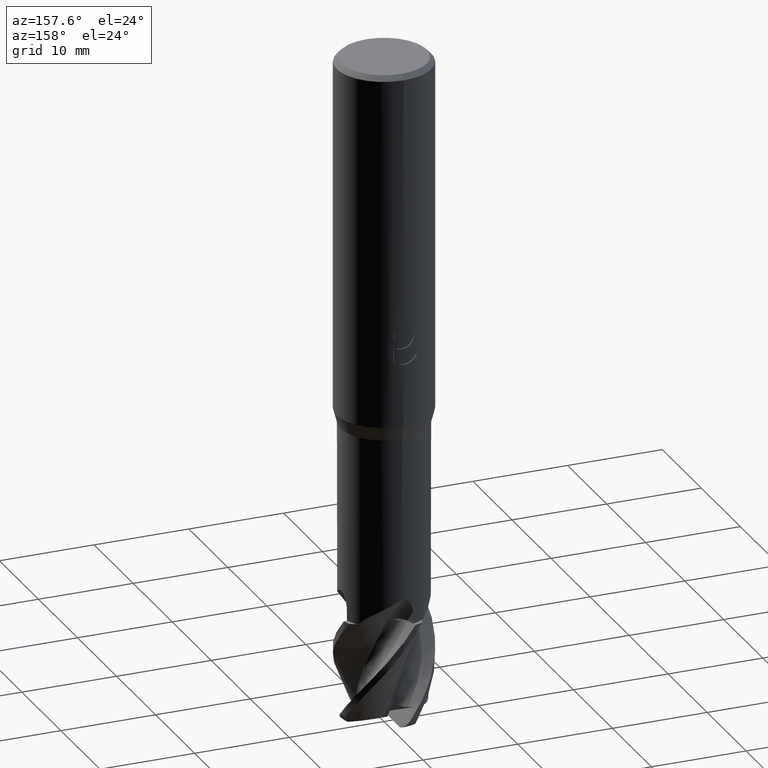
[diagram: clean part render]
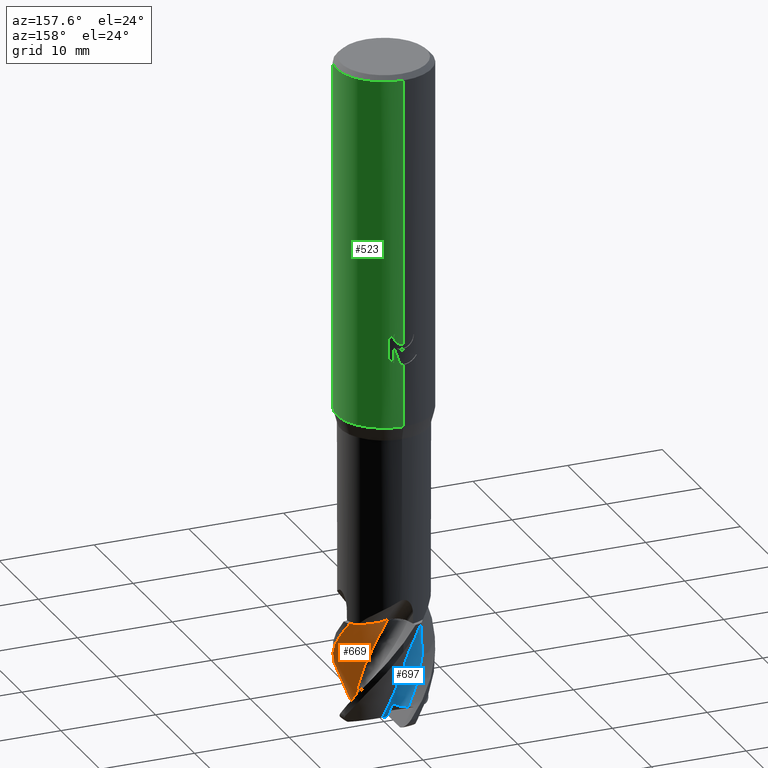
[diagram: same view with three faces highlighted in distinct colors, each labeled with its STEP entity id]
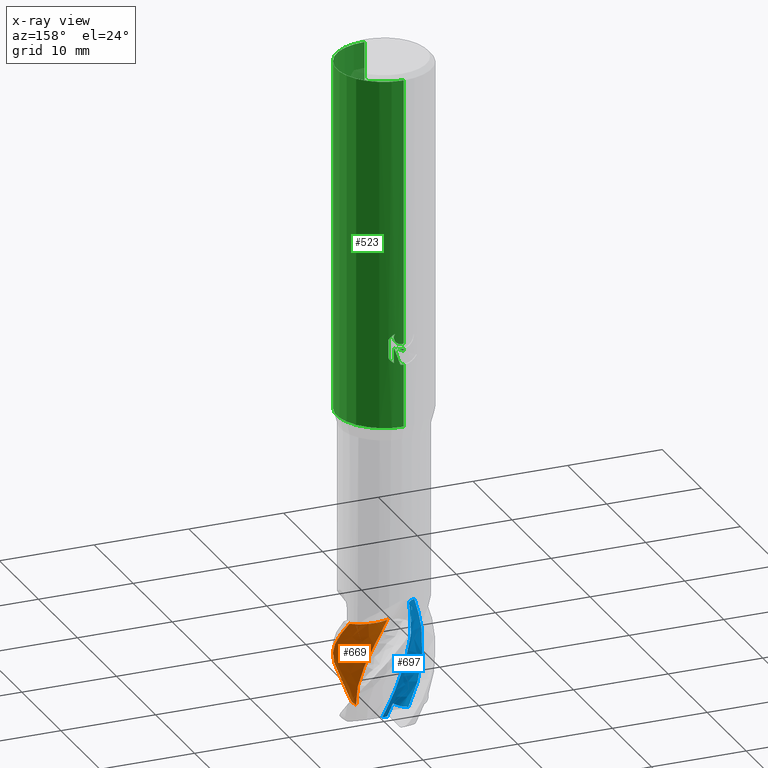
[diagram: x-ray of the same camera — body ghosted, the three highlighted faces saturated]
A machine part, auxiliary view with three faces highlighted in distinct colors.
The next image is the same camera in x-ray (body ghosted, the three faces saturated) — at least one of them is partly hidden behind the body in this view.
Their STEP definitions:

[orange] entity #669 — the highlighted face is a freeform B-spline surface patch.
#597=VERTEX_POINT('',#1587);
#615=EDGE_CURVE('',#741,#845,#1607,.T.);
#669=ADVANCED_FACE('',(#1662),#1663,.T.);
#695=EDGE_CURVE('',#725,#1021,#1691,.T.);
#725=VERTEX_POINT('',#1725);
#741=VERTEX_POINT('',#1743);
#759=EDGE_CURVE('',#1021,#741,#1761,.T.);
#791=EDGE_CURVE('',#845,#957,#1797,.T.);
#845=VERTEX_POINT('',#1858);
#893=EDGE_CURVE('',#1011,#725,#1910,.T.);
#945=EDGE_CURVE('',#1011,#597,#1966,.T.);
#957=VERTEX_POINT('',#1981);
#1011=VERTEX_POINT('',#2042);
#1021=VERTEX_POINT('',#2053);
#1265=EDGE_CURVE('',#957,#597,#2311,.T.);
#1587=CARTESIAN_POINT('',(0.737076171154196,2.63797045360997,-59.0));
#1607=B_SPLINE_CURVE_WITH_KNOTS('',3,(#3138,#3139,#3140,#3141,#3142,#3143,#3144,#3145),.UNSPECIFIED.,.F.,.F.,(4,2,2,4),(0.0,1.55396349120969,2.99561924604942,4.43724220191925),.UNSPECIFIED.);
#1662=FACE_OUTER_BOUND('',#3424,.T.);
#1663=B_SPLINE_SURFACE_WITH_KNOTS('',3,3,((#3425,#3426,#3427,#3428,#3429,#3430,#3431,#3432,#3433,#3434,#3435,#3436,#3437,#3438,#3439,#3440,#3441,#3442,#3443,#3444,#3445,#3446,#3447,#3448,#3449,#3450,#3451,#3452,#3453,#3454,#3455,#3456,#3457,#3458,#3459,#3460,#3461,#3462,#3463,#3464),(#3465,#3466,#3467,#3468,#3469,#3470,#3471,#3472,#3473,#3474,#3475,#3476,#3477,#3478,#3479,#3480,#3481,#3482,#3483,#3484,#3485,#3486,#3487,#3488,#3489,#3490,#3491,#3492,#3493,#3494,#3495,#3496,#3497,#3498,#3499,#3500,#3501,#3502,#3503,#3504),(#3505,#3506,#3507,#3508,#3509,#3510,#3511,#3512,#3513,#3514,#3515,#3516,#3517,#3518,#3519,#3520,#3521,#3522,#3523,#3524,#3525,#3526,#3527,#3528,#3529,#3530,#3531,#3532,#3533,#3534,#3535,#3536,#3537,#3538,#3539,#3540,#3541,#3542,#3543,#3544),(#3545,#3546,#3547,#3548,#3549,#3550,#3551,#3552,#3553,#3554,#3555,#3556,#3557,#3558,#3559,#3560,#3561,#3562,#3563,#3564,#3565,#3566,#3567,#3568,#3569,#3570,#3571,#3572,#3573,#3574,#3575,#3576,#3577,#3578,#3579,#3580,#3581,#3582,#3583,#3584),(#3585,#3586,#3587,#3588,#3589,#3590,#3591,#3592,#3593,#3594,#3595,#3596,#3597,#3598,#3599,#3600,#3601,#3602,#3603,#3604,#3605,#3606,#3607,#3608,#3609,#3610,#3611,#3612,#3613,#3614,#3615,#3616,#3617,#3618,#3619,#3620,#3621,#3622,#3623,#3624),(#3625,#3626,#3627,#3628,#3629,#3630,#3631,#3632,#3633,#3634,#3635,#3636,#3637,#3638,#3639,#3640,#3641,#3642,#3643,#3644,#3645,#3646,#3647,#3648,#3649,#3650,#3651,#3652,#3653,#3654,#3655,#3656,#3657,#3658,#3659,#3660,#3661,#3662,#3663,#3664)),.UNSPECIFIED.,.F.,.F.,.F.,(4,1,1,4),(4,1,2,2,1,2,1,1,2,1,1,2,1,1,1,2,1,1,2,1,1,2,1,1,1,2,1,1,4),(-1.11221997675852,-0.695137485474076,-0.27805499418963,0.0),(0.0,0.486072077387521,0.972144154775041,1.94428830955008,2.91643246432512,3.88857661910017,4.86072077387521,6.31893700603777,7.77715323820033,9.23536947036289,10.6935857025255,11.6657298573005,12.6378740120755,13.6100181668506,14.5821623216256,15.5543064764007,16.5264506311757,17.9846668633383,19.4428830955008,20.9010993276634,22.359315559826,23.331459714601,24.303603869376,25.2757480241511,26.2478921789261,27.2200363337012,28.1921804884762,29.6503967206388,31.1086129528013),.UNSPECIFIED.);
#1691=B_SPLINE_CURVE_WITH_KNOTS('',3,(#3887,#3888,#3889,#3890,#3891,#3892,#3893,#3894,#3895,#3896,#3897,#3898,#3899,#3900,#3901,#3902,#3903,#3904,#3905,#3906),.UNSPECIFIED.,.F.,.F.,(4,2,2,2,2,2,2,2,2,4),(0.0,0.769420759104394,1.74032963592877,2.42596052196037,2.88260017029396,3.18028061805128,3.44655268304474,3.7623935095189,3.92064508495623,4.05638694033664),.UNSPECIFIED.);
#1725=CARTESIAN_POINT('',(1.47630549678815,-4.43153209530625,-69.7414850886461));
#1743=CARTESIAN_POINT('',(4.52905857490984,2.11816629069472,-59.0));
#1761=B_SPLINE_CURVE_WITH_KNOTS('',3,(#4642,#4643,#4644,#4645,#4646,#4647,#4648,#4649,#4650,#4651,#4652,#4653,#4654,#4655,#4656,#4657,#4658,#4659),.UNSPECIFIED.,.F.,.F.,(4,2,2,2,2,2,2,2,4),(0.0,0.557851609721486,1.72374534259274,3.8285787963716,5.38078370266733,6.46802397177926,7.98955394303208,8.78270153063445,9.55598091135206),.UNSPECIFIED.);
#1797=B_SPLINE_CURVE_WITH_KNOTS('',3,(#4735,#4736,#4737,#4738,#4739,#4740,#4741,#4742),.UNSPECIFIED.,.F.,.F.,(4,2,2,4),(0.0,1.55396349120969,2.99561924604942,4.43724220191925),.UNSPECIFIED.);
#1858=CARTESIAN_POINT('',(4.50606394713274,2.13509259524409,-59.0));
#1910=B_SPLINE_CURVE_WITH_KNOTS('',3,(#5131,#5132,#5133,#5134,#5135,#5136,#5137,#5138),.UNSPECIFIED.,.F.,.F.,(4,2,2,4),(0.0,1.3569187390882,2.46078725031736,3.66498565022001),.UNSPECIFIED.);
#1966=B_SPLINE_CURVE_WITH_KNOTS('',3,(#5561,#5562,#5563,#5564,#5565,#5566,#5567,#5568,#5569,#5570,#5571,#5572,#5573,#5574,#5575,#5576,#5577,#5578,#5579,#5580,#5581,#5582,#5583,#5584,#5585,#5586,#5587,#5588,#5589,#5590,#5591,#5592,#5593,#5594,#5595,#5596,#5597,#5598,#5599,#5600),.UNSPECIFIED.,.F.,.F.,(4,1,2,2,1,2,1,1,2,1,1,2,1,1,1,2,1,1,2,1,1,2,1,1,1,2,1,1,4),(0.0,0.486072077387521,0.972144154775041,1.94428830955008,2.91643246432512,3.88857661910017,4.86072077387521,6.31893700603777,7.77715323820033,9.23536947036289,10.6935857025255,11.6657298573005,12.6378740120755,13.6100181668506,14.5821623216256,15.5543064764007,16.5264506311757,17.9846668633383,19.4428830955008,20.9010993276634,22.359315559826,23.331459714601,24.303603869376,25.2757480241511,26.2478921789261,27.2200363337012,28.1921804884762,29.6503967206388,31.1086129528013),.UNSPECIFIED.);
#1981=CARTESIAN_POINT('',(3.68322327025453,2.5975549629585,-59.0));
#2042=CARTESIAN_POINT('',(2.46012442526015,-1.20096884867504,-69.4218229412569));
#2053=CARTESIAN_POINT('',(1.60307264857335,-4.73604878389106,-69.0));
#2311=B_SPLINE_CURVE_WITH_KNOTS('',3,(#7974,#7975,#7976,#7977,#7978,#7979,#7980,#7981),.UNSPECIFIED.,.F.,.F.,(4,2,2,4),(0.0,1.55396349120969,2.99561924604942,4.43724220191925),.UNSPECIFIED.);
#3138=CARTESIAN_POINT('',(4.86108505578908,1.84280296150224,-59.0));
#3139=CARTESIAN_POINT('',(4.48088859473281,2.19460126088149,-59.0));
#3140=CARTESIAN_POINT('',(4.03561449795018,2.46877599508461,-59.0));
#3141=CARTESIAN_POINT('',(3.10010394672517,2.81791849535592,-59.0));
#3142=CARTESIAN_POINT('',(2.62314150371278,2.90297791340027,-59.0));
#3143=CARTESIAN_POINT('',(1.66205792340642,2.89890090303645,-59.0));
#3144=CARTESIAN_POINT('',(1.18584488379222,2.8098020001104,-59.0));
#3145=CARTESIAN_POINT('',(0.737076171154183,2.63797045360997,-59.0));
#3424=EDGE_LOOP('',(#9196,#9197,#9198,#9199,#9200,#9201,#9202));
#3425=CARTESIAN_POINT('',(-5.19564065181808,-0.212880755921786,-80.0));
#3426=CARTESIAN_POINT('',(-5.19609680644737,-0.189890592192867,-79.8385460500554));
#3427=CARTESIAN_POINT('',(-5.19494594156864,-0.238256232680007,-79.5156478639532));
#3428=CARTESIAN_POINT('',(-5.1794994751181,-0.477770324812059,-79.1927553830417));
#3429=CARTESIAN_POINT('',(-5.11655024582423,-0.977129289067499,-78.7083695761286));
#3430=CARTESIAN_POINT('',(-5.04664529308524,-1.27880502848625,-78.3854371481598));
#3431=CARTESIAN_POINT('',(-4.87529433628579,-1.82631806203963,-77.7395959489237));
#3432=CARTESIAN_POINT('',(-4.66167584927622,-2.35150973638678,-77.0937558532972));
#3433=CARTESIAN_POINT('',(-4.36543498500474,-2.83708377016812,-76.4479260934714));
#3434=CARTESIAN_POINT('',(-4.0247115485475,-3.30295156237913,-75.8020970597784));
#3435=CARTESIAN_POINT('',(-3.56152633583642,-3.83503759650413,-74.9948003153958));
#3436=CARTESIAN_POINT('',(-2.69261648071972,-4.50412857233201,-73.7031380078652));
#3437=CARTESIAN_POINT('',(-1.91773161953482,-4.85177429207895,-72.7344089509235));
#3438=CARTESIAN_POINT('',(-1.07353354912501,-5.10543284513102,-71.7656529515241));
#3439=CARTESIAN_POINT('',(-0.235901144276198,-5.24239209051761,-70.7968772462885));
#3440=CARTESIAN_POINT('',(0.862905557389257,-5.16255081476299,-69.5052146303626));
#3441=CARTESIAN_POINT('',(1.550754232743,-4.97033935246785,-68.6979356250092));
#3442=CARTESIAN_POINT('',(2.09965896288456,-4.76455615216402,-68.0521030676683));
#3443=CARTESIAN_POINT('',(2.61573124806714,-4.51863090044092,-67.4062605188767));
#3444=CARTESIAN_POINT('',(3.2987220181123,-4.04622449681783,-66.4375019565823));
#3445=CARTESIAN_POINT('',(3.89894648208299,-3.47237947318845,-65.4687604084187));
#3446=CARTESIAN_POINT('',(4.24378539251623,-3.01651622483346,-64.8229363029868));
#3447=CARTESIAN_POINT('',(4.55598476721765,-2.52043660330475,-64.1771022814516));
#3448=CARTESIAN_POINT('',(4.88294973507448,-1.8853420428436,-63.3697972656502));
#3449=CARTESIAN_POINT('',(5.18234756544545,-0.825004374119845,-62.0781220454436));
#3450=CARTESIAN_POINT('',(5.21688437361934,0.0218649910455856,-61.1093919692102));
#3451=CARTESIAN_POINT('',(5.13919098800625,0.897635232842162,-60.1406418772599));
#3452=CARTESIAN_POINT('',(4.95592516539474,1.72546881757682,-59.1718713351777));
#3453=CARTESIAN_POINT('',(4.47386718166457,2.7168919548825,-57.8802105275996));
#3454=CARTESIAN_POINT('',(4.03993312460627,3.28451258873163,-57.0729294428162));
#3455=CARTESIAN_POINT('',(3.64520203244384,3.717805005705,-56.4270942584265));
#3456=CARTESIAN_POINT('',(3.22556959194476,4.10554340918623,-55.7812499649805));
#3457=CARTESIAN_POINT('',(2.53388421040326,4.56429474717018,-54.8124918292606));
#3458=CARTESIAN_POINT('',(1.77806546967121,4.90897652309737,-53.8437537138714));
#3459=CARTESIAN_POINT('',(1.22567832144115,5.0603602361706,-53.1979336062352));
#3460=CARTESIAN_POINT('',(0.647355947161724,5.16635501700152,-52.5521041292132));
#3461=CARTESIAN_POINT('',(-0.0655354658459752,5.23403155675051,-51.7448014375135));
#3462=CARTESIAN_POINT('',(-1.15850921637866,5.11761711156955,-50.4531215658583));
#3463=CARTESIAN_POINT('',(-1.9484194677618,4.83888143208641,-49.4843897510382));
#3464=CARTESIAN_POINT('',(-2.33487250988358,4.64451046831458,-49.0000173704426));
#3465=CARTESIAN_POINT('',(-4.93170831188276,-0.698890583402509,-80.0));
#3466=CARTESIAN_POINT('',(-4.93296847543732,-0.676337045393666,-79.8385492808142));
#3467=CARTESIAN_POINT('',(-4.92532464257459,-0.7213032507056,-79.5157175980826));
#3468=CARTESIAN_POINT('',(-4.88748091086648,-0.947771084959736,-79.1929304507209));
#3469=CARTESIAN_POINT('',(-4.78060608891639,-1.41786187778548,-78.7085163815257));
#3470=CARTESIAN_POINT('',(-4.68547424873049,-1.69874547279753,-78.385520632518));
#3471=CARTESIAN_POINT('',(-4.47017759876977,-2.20404067152182,-77.7396461017452));
#3472=CARTESIAN_POINT('',(-4.21667869531613,-2.68399383393154,-77.0937811916577));
#3473=CARTESIAN_POINT('',(-3.88826187553999,-3.11834997893118,-76.4479690505175));
#3474=CARTESIAN_POINT('',(-3.51939021606521,-3.52978769597305,-75.8021595595886));
#3475=CARTESIAN_POINT('',(-3.02748120905728,-3.9925241858023,-74.9948469529851));
#3476=CARTESIAN_POINT('',(-2.13597433532509,-4.5467823337157,-73.7032034601547));
#3477=CARTESIAN_POINT('',(-1.36475849397034,-4.80413877605626,-72.7345542228338));
#3478=CARTESIAN_POINT('',(-0.536385613686158,-4.96572021040143,-71.7657772281675));
#3479=CARTESIAN_POINT('',(0.274591663429422,-5.01638650100178,-70.7969069319378));
#3480=CARTESIAN_POINT('',(1.31352369492199,-4.8354108891199,-69.5052629467485));
#3481=CARTESIAN_POINT('',(1.95048571276998,-4.58687293795457,-68.6980336852478));
#3482=CARTESIAN_POINT('',(2.45391780257695,-4.33872541026354,-68.0522057054913));
#3483=CARTESIAN_POINT('',(2.92215148043527,-4.05534682986866,-67.4063300984853));
#3484=CARTESIAN_POINT('',(3.52762397103917,-3.54021003811791,-66.4375416215256));
#3485=CARTESIAN_POINT('',(4.0445784812727,-2.93636057314584,-65.4688340815212));
#3486=CARTESIAN_POINT('',(4.32971035792128,-2.46929743587002,-64.8230461814432));
#3487=CARTESIAN_POINT('',(4.58007659248734,-1.96703757130147,-64.1772111035424));
#3488=CARTESIAN_POINT('',(4.83113092071353,-1.33091063847815,-63.3698578782557));
#3489=CARTESIAN_POINT('',(5.0150349496714,-0.292385164105343,-62.0781536873317));
#3490=CARTESIAN_POINT('',(4.96726424062669,0.517574731565521,-61.1095007536288));
#3491=CARTESIAN_POINT('',(4.81013379322794,1.34457910427288,-60.1407523902769));
#3492=CARTESIAN_POINT('',(4.55668034432814,2.11570718374597,-59.1719065416386));
#3493=CARTESIAN_POINT('',(4.00287519421617,3.01395923366496,-57.8802706277171));
#3494=CARTESIAN_POINT('',(3.53551031484874,3.51339934557622,-57.0730316512028));
#3495=CARTESIAN_POINT('',(3.11831674124241,3.8887518279416,-56.427191601129));
#3496=CARTESIAN_POINT('',(2.68166619634805,4.21819876773783,-55.7813084668524));
#3497=CARTESIAN_POINT('',(1.97906193253426,4.5891536369805,-54.8125230687788));
#3498=CARTESIAN_POINT('',(1.22626718742433,4.84534654242393,-53.8438318088416));
#3499=CARTESIAN_POINT('',(0.685655706493041,4.93702148773614,-53.1980614596327));
#3500=CARTESIAN_POINT('',(0.124603811912336,4.9831434632769,-52.5522454912863));
#3501=CARTESIAN_POINT('',(-0.560973578960067,4.9798073975185,-51.7448988276622));
#3502=CARTESIAN_POINT('',(-1.59086905863772,4.76452979201103,-50.4531549835585));
#3503=CARTESIAN_POINT('',(-2.31666869617625,4.4237100180053,-49.4844645405855));
#3504=CARTESIAN_POINT('',(-2.66635792536323,4.2018105162807,-49.0000826767076));
#3505=CARTESIAN_POINT('',(-4.19837080486198,-1.5589861157215,-80.0));
#3506=CARTESIAN_POINT('',(-4.20105383716326,-1.53764574407337,-79.8385550167997));
#3507=CARTESIAN_POINT('',(-4.18186576469139,-1.57306794543593,-79.5158414054903));
#3508=CARTESIAN_POINT('',(-4.10475904478856,-1.76397474277888,-79.1932412694782));
#3509=CARTESIAN_POINT('',(-3.92243924645926,-2.15696147114995,-78.7087770228938));
#3510=CARTESIAN_POINT('',(-3.78566373879337,-2.38559931214026,-78.3856688529021));
#3511=CARTESIAN_POINT('',(-3.50036052907971,-2.78788961129858,-77.7397351435705));
#3512=CARTESIAN_POINT('',(-3.18626131439027,-3.16051805433335,-77.0938261803619));
#3513=CARTESIAN_POINT('',(-2.81517864199746,-3.47885346087619,-76.4480453129598));
#3514=CARTESIAN_POINT('',(-2.41305342147617,-3.7695518223451,-75.8022705274254));
#3515=CARTESIAN_POINT('',(-1.8930519372912,-4.08147456213262,-74.9949297517586));
#3516=CARTESIAN_POINT('',(-1.00494540990265,-4.39656900206773,-73.7033196731144));
#3517=CARTESIAN_POINT('',(-0.279264163101332,-4.47494797935668,-72.7348121373051));
#3518=CARTESIAN_POINT('',(0.478511947513936,-4.45912002463874,-71.7659978757641));
#3519=CARTESIAN_POINT('',(1.19968553788772,-4.34852404004832,-70.7969596340788));
#3520=CARTESIAN_POINT('',(2.07611382896893,-3.99066546938598,-69.5053487192551));
#3521=CARTESIAN_POINT('',(2.58750007949666,-3.65103354400932,-68.6982077902885));
#3522=CARTESIAN_POINT('',(2.98208843657267,-3.33741827315291,-68.0523879239319));
#3523=CARTESIAN_POINT('',(3.3388254354569,-2.99939230602066,-67.4064536403928));
#3524=CARTESIAN_POINT('',(3.77122536762488,-2.43161337794654,-66.437612048618));
#3525=CARTESIAN_POINT('',(4.10899104071132,-1.80300013662792,-65.4689648849151));
#3526=CARTESIAN_POINT('',(4.2700028130497,-1.33880344147602,-64.8232412458467));
#3527=CARTESIAN_POINT('',(4.39412149034948,-0.850346079635699,-64.1774043246076));
#3528=CARTESIAN_POINT('',(4.49295881590959,-0.244270374569969,-63.3699654729845));
#3529=CARTESIAN_POINT('',(4.45516570986354,0.701780719059451,-62.0782098346029));
#3530=CARTESIAN_POINT('',(4.25843968686998,1.40311989807068,-61.1096938666485));
#3531=CARTESIAN_POINT('',(3.96310933588526,2.09901155917816,-60.1409486224527));
#3532=CARTESIAN_POINT('',(3.59330889780899,2.72706508969267,-59.1719690541101));
#3533=CARTESIAN_POINT('',(2.93546593961562,3.40867135055172,-57.8803773215271));
#3534=CARTESIAN_POINT('',(2.43010251159363,3.75764375793014,-57.0732130986298));
#3535=CARTESIAN_POINT('',(1.99250867875978,4.00764448424262,-56.4273644408162));
#3536=CARTESIAN_POINT('',(1.5464924071977,4.21334020268405,-55.7814123275279));
#3537=CARTESIAN_POINT('',(0.85920020691392,4.40413011505187,-54.8125785446727));
#3538=CARTESIAN_POINT('',(0.149888674690247,4.48467247318793,-53.8439704537004));
#3539=CARTESIAN_POINT('',(-0.341916940631526,4.46194406603505,-53.1982884604322));
#3540=CARTESIAN_POINT('',(-0.843106909498922,4.39565938254457,-52.5524964611909));
#3541=CARTESIAN_POINT('',(-1.44402781711656,4.26189219411168,-51.7450717641034));
#3542=CARTESIAN_POINT('',(-2.30597495557008,3.87562812926319,-50.45321433018));
#3543=CARTESIAN_POINT('',(-2.87732216568237,3.43779691320145,-49.4845972964987));
#3544=CARTESIAN_POINT('',(-3.14185719231738,3.17640881080151,-49.0001986228087));
#3545=CARTESIAN_POINT('',(-2.8397585664664,-2.21119471368533,-80.0));
#3546=CARTESIAN_POINT('',(-2.84352055390187,-2.19210190869983,-79.8385594219847));
#3547=CARTESIAN_POINT('',(-2.81541703317553,-2.20965308349819,-79.5159364890817));
#3548=CARTESIAN_POINT('',(-2.70966348129144,-2.3359989236349,-79.1934799770917));
#3549=CARTESIAN_POINT('',(-2.4770376940944,-2.59423648611926,-78.708977194347));
#3550=CARTESIAN_POINT('',(-2.31772806586789,-2.73668903873397,-78.3857826864644));
#3551=CARTESIAN_POINT('',(-2.0027420556718,-2.97559636787204,-77.7398035264436));
#3552=CARTESIAN_POINT('',(-1.67275991101612,-3.1846582544774,-77.0938607309772));
#3553=CARTESIAN_POINT('',(-1.31235409029267,-3.33851680729802,-76.448103884172));
#3554=CARTESIAN_POINT('',(-0.934928357752842,-3.46407186798735,-75.8023557483257));
#3555=CARTESIAN_POINT('',(-0.462166470854862,-3.57698024518378,-74.9949933419267));
#3556=CARTESIAN_POINT('',(0.292577274863419,-3.60238035979291,-73.7034089213793));
#3557=CARTESIAN_POINT('',(0.866053737335916,-3.48719442739761,-72.7350102157363));
#3558=CARTESIAN_POINT('',(1.44192243358232,-3.2932539409188,-71.7661673311025));
#3559=CARTESIAN_POINT('',(1.96650020433931,-3.03460540195527,-70.7970001120543));
#3560=CARTESIAN_POINT('',(2.54927438987829,-2.54893245116922,-69.5054145969239));
#3561=CARTESIAN_POINT('',(2.85837129972916,-2.1661077925793,-68.6983414990185));
#3562=CARTESIAN_POINT('',(3.08491166469078,-1.83149707719526,-68.0525278702213));
#3563=CARTESIAN_POINT('',(3.27621294260372,-1.48709861180048,-67.4065485165623));
#3564=CARTESIAN_POINT('',(3.46920192366406,-0.948660385772855,-66.4376661335539));
#3565=CARTESIAN_POINT('',(3.57516353735961,-0.386675082883842,-65.4690653386007));
#3566=CARTESIAN_POINT('',(3.58642628821454,0.00696661322277231,-64.8233910639348));
#3567=CARTESIAN_POINT('',(3.56411134036728,0.410388875674478,-64.1775527082198));
#3568=CARTESIAN_POINT('',(3.49363828224138,0.897591845982407,-63.3700481112057));
#3569=CARTESIAN_POINT('',(3.23556778506595,1.61113927408714,-62.078252974115));
#3570=CARTESIAN_POINT('',(2.91595760057752,2.09959476475676,-61.1098421862925));
#3571=CARTESIAN_POINT('',(2.52300575648998,2.56099687825958,-60.1410993183709));
#3572=CARTESIAN_POINT('',(2.08868457872344,2.95178674824607,-59.1720170687802));
#3573=CARTESIAN_POINT('',(1.42107514184159,3.31309933600684,-57.8804592712996));
#3574=CARTESIAN_POINT('',(0.950689195481168,3.45812701671822,-57.0733524504228));
#3575=CARTESIAN_POINT('',(0.555954592321141,3.54430664459526,-56.4274971801251));
#3576=CARTESIAN_POINT('',(0.165383486468474,3.59409406232498,-55.7814920890972));
#3577=CARTESIAN_POINT('',(-0.405902457979324,3.57354268770566,-54.8126211421745));
#3578=CARTESIAN_POINT('',(-0.967307261841864,3.46346722525496,-53.84407694284));
#3579=CARTESIAN_POINT('',(-1.33780932553633,3.32765479506382,-53.1984627821601));
#3580=CARTESIAN_POINT('',(-1.70529761036294,3.15669346497381,-52.5526892190684));
#3581=CARTESIAN_POINT('',(-2.13255473935526,2.90967477873681,-51.7452045522617));
#3582=CARTESIAN_POINT('',(-2.69739681225187,2.40572560312206,-50.453259902517));
#3583=CARTESIAN_POINT('',(-3.0280579911498,1.93309027319845,-49.4846992517872));
#3584=CARTESIAN_POINT('',(-3.16745793668112,1.66957508953798,-49.0002876689509));
#3585=CARTESIAN_POINT('',(-1.91358979082674,-2.30394249606492,-80.0));
#3586=CARTESIAN_POINT('',(-1.91750521278804,-2.28638186042541,-79.83856009917));
#3587=CARTESIAN_POINT('',(-1.88798638159153,-2.29167952039032,-79.515951107168));
#3588=CARTESIAN_POINT('',(-1.77918767414919,-2.37450782463202,-79.1935166758065));
#3589=CARTESIAN_POINT('',(-1.54571350848674,-2.54391354230384,-78.7090079684808));
#3590=CARTESIAN_POINT('',(-1.39145966584314,-2.63157878059027,-78.3858001864729));
#3591=CARTESIAN_POINT('',(-1.09362721699823,-2.76936858666441,-77.739814040225));
#3592=CARTESIAN_POINT('',(-0.788850280851104,-2.8801109739377,-77.0938660428966));
#3593=CARTESIAN_POINT('',(-0.469263459353222,-2.94071181357055,-76.4481128879188));
#3594=CARTESIAN_POINT('',(-0.14093937138292,-2.97557367739998,-75.802368851048));
#3595=CARTESIAN_POINT('',(0.262503503769327,-2.98286561196153,-74.9950031166913));
#3596=CARTESIAN_POINT('',(0.878833534159762,-2.86812247555397,-73.7034226404871));
#3597=CARTESIAN_POINT('',(1.32318900645386,-2.67257763881829,-72.7350406683033));
#3598=CARTESIAN_POINT('',(1.75594203209959,-2.41350265397395,-71.7661933828455));
#3599=CARTESIAN_POINT('',(2.13520224836651,-2.11026589366835,-70.7970063294138));
#3600=CARTESIAN_POINT('',(2.52056086962783,-1.6121851827543,-69.5054247225737));
#3601=CARTESIAN_POINT('',(2.70310532168639,-1.24685848593505,-68.6983620567432));
#3602=CARTESIAN_POINT('',(2.82764791404542,-0.935427615795983,-68.0525493839714));
#3603=CARTESIAN_POINT('',(2.92154611314878,-0.622150113678444,-67.4065631003436));
#3604=CARTESIAN_POINT('',(2.98169459805862,-0.151140487818661,-66.4376744482556));
#3605=CARTESIAN_POINT('',(2.96708101892715,0.323366154461958,-65.4690807858059));
#3606=CARTESIAN_POINT('',(2.90624115888482,0.644519998872003,-64.8234140959891));
#3607=CARTESIAN_POINT('',(2.81679652101275,0.967744232497681,-64.177575521425));
#3608=CARTESIAN_POINT('',(2.67303236975402,1.35028588883701,-63.3700608089174));
#3609=CARTESIAN_POINT('',(2.33599356822248,1.8824635371796,-62.0782595843351));
#3610=CARTESIAN_POINT('',(1.98983770146433,2.22144127569393,-61.1098650244084));
#3611=CARTESIAN_POINT('',(1.58955681408296,2.52613732015573,-60.1411224506499));
#3612=CARTESIAN_POINT('',(1.16771076125532,2.76557740998251,-59.1720244476432));
#3613=CARTESIAN_POINT('',(0.561846317659827,2.93885285184229,-57.880471873947));
#3614=CARTESIAN_POINT('',(0.154697025378071,2.97282027574675,-57.0733738767384));
#3615=CARTESIAN_POINT('',(-0.180669617176069,2.97289675389191,-56.4275175848429));
#3616=CARTESIAN_POINT('',(-0.5062301058264,2.9438247835253,-55.7815043578985));
#3617=CARTESIAN_POINT('',(-0.965672454577295,2.82497334123062,-54.8126276898381));
#3618=CARTESIAN_POINT('',(-1.4010722678729,2.63534555315499,-53.844093305586));
#3619=CARTESIAN_POINT('',(-1.67733618427067,2.45940203155623,-53.1984895896748));
#3620=CARTESIAN_POINT('',(-1.94515682427675,2.25580101565537,-52.5527188460415));
#3621=CARTESIAN_POINT('',(-2.24773708848365,1.9795748670022,-51.7452249734199));
#3622=CARTESIAN_POINT('',(-2.61529178862962,1.46982595334159,-50.4532668929524));
#3623=CARTESIAN_POINT('',(-2.79887076750237,1.02764133133722,-49.4847149364726));
#3624=CARTESIAN_POINT('',(-2.86516216358674,0.789229692839175,-49.0003013588229));
#3625=CARTESIAN_POINT('',(-1.54516668842389,-2.28963209410875,-80.0));
#3626=CARTESIAN_POINT('',(-1.5490584371908,-2.27268094517319,-79.8385600301461));
#3627=CARTESIAN_POINT('',(-1.51965509274174,-2.27309394219306,-79.515949616728));
#3628=CARTESIAN_POINT('',(-1.41204379019709,-2.33868315369798,-79.1935129339765));
#3629=CARTESIAN_POINT('',(-1.18309924636077,-2.47319271070188,-78.7090048308599));
#3630=CARTESIAN_POINT('',(-1.03382778312219,-2.53964101791193,-78.3857984022136));
#3631=CARTESIAN_POINT('',(-0.748259809181286,-2.63870024554417,-77.7398129682122));
#3632=CARTESIAN_POINT('',(-0.458752945883149,-2.71225047704591,-77.0938655010917));
#3633=CARTESIAN_POINT('',(-0.16028458677305,-2.73849961564627,-76.4481119703424));
#3634=CARTESIAN_POINT('',(0.143812039663419,-2.74046925060829,-75.80236751466));
#3635=CARTESIAN_POINT('',(0.514279091491341,-2.71012104195548,-74.9950021209446));
#3636=CARTESIAN_POINT('',(1.06863675757185,-2.54797460790162,-73.7034212423289));
#3637=CARTESIAN_POINT('',(1.45793796940524,-2.32797187041648,-72.7350375636501));
#3638=CARTESIAN_POINT('',(1.83097981120845,-2.05117773074071,-71.7661907263473));
#3639=CARTESIAN_POINT('',(2.15078967581162,-1.73840286420616,-70.797005696758));
#3640=CARTESIAN_POINT('',(2.45802080374165,-1.24626053517378,-69.5054236915643));
#3641=CARTESIAN_POINT('',(2.59187512586861,-0.894725682067717,-68.6983599599667));
#3642=CARTESIAN_POINT('',(2.67767166720755,-0.597971647822531,-68.0525471911617));
#3643=CARTESIAN_POINT('',(2.73506105081914,-0.302234871566009,-67.406561614678));
#3644=CARTESIAN_POINT('',(2.74678562228577,0.135050376844075,-66.4376736005309));
#3645=CARTESIAN_POINT('',(2.6896574373944,0.568638155077139,-65.4690792089242));
#3646=CARTESIAN_POINT('',(2.60449874800642,0.857407476747017,-64.8234117481386));
#3647=CARTESIAN_POINT('',(2.49310824093554,1.1454946057585,-64.1775731949152));
#3648=CARTESIAN_POINT('',(2.32632010589252,1.48296467732232,-63.3700595180889));
#3649=CARTESIAN_POINT('',(1.96822893441667,1.93966639797006,-62.0782589178582));
#3650=CARTESIAN_POINT('',(1.61984097277316,2.21854930465705,-61.1098626808468));
#3651=CARTESIAN_POINT('',(1.22526256099432,2.46136664265185,-60.1411201070882));
#3652=CARTESIAN_POINT('',(0.816595182355797,2.64211338929809,-59.1720236959899));
#3653=CARTESIAN_POINT('',(0.245246716257974,2.74499955477094,-57.880470586169));
#3654=CARTESIAN_POINT('',(-0.131014953101323,2.73885823825794,-57.0733716908527));
#3655=CARTESIAN_POINT('',(-0.43837778773782,2.70840516108932,-56.4275155056609));
#3656=CARTESIAN_POINT('',(-0.734117307623627,2.65195430816274,-55.78150310439));
#3657=CARTESIAN_POINT('',(-1.1443014445425,2.50066072524466,-54.8126270226227));
#3658=CARTESIAN_POINT('',(-1.52591358865255,2.28672090918061,-53.8440916417096));
#3659=CARTESIAN_POINT('',(-1.76301014819684,2.10019189551437,-53.1984868513725));
#3660=CARTESIAN_POINT('',(-1.98994344246503,1.88924154883854,-52.5527158303098));
#3661=CARTESIAN_POINT('',(-2.24201283654812,1.60838151758956,-51.7452228878706));
#3662=CARTESIAN_POINT('',(-2.53185204049716,1.10715637164758,-50.4532661892162));
#3663=CARTESIAN_POINT('',(-2.65939584759486,0.684968843720071,-49.4847133325886));
#3664=CARTESIAN_POINT('',(-2.69838005547692,0.460407402839449,-49.0002999630109));
#3887=CARTESIAN_POINT('',(2.44290110150666,-2.14279799916376,-69.6608877136353));
#3888=CARTESIAN_POINT('',(2.38892068269574,-2.36342063633413,-69.7800114596204));
#3889=CARTESIAN_POINT('',(2.31674410223562,-2.61936468613721,-69.8754127588699));
#3890=CARTESIAN_POINT('',(2.08790211517447,-3.24318517782899,-70.0104417167591));
#3891=CARTESIAN_POINT('',(1.9337255390907,-3.5658884427175,-70.0168545863825));
#3892=CARTESIAN_POINT('',(1.6906802698889,-4.02859603244414,-69.9404795554935));
#3893=CARTESIAN_POINT('',(1.5970535478293,-4.19432020692592,-69.8832489536261));
#3894=CARTESIAN_POINT('',(1.47966764042229,-4.42135444490666,-69.7547046178386));
#3895=CARTESIAN_POINT('',(1.44295998474952,-4.49927458379651,-69.6943950746727));
#3896=CARTESIAN_POINT('',(1.40704229317537,-4.60475155949194,-69.5824302409469));
#3897=CARTESIAN_POINT('',(1.39861210602597,-4.64213817356217,-69.5331868700494));
#3898=CARTESIAN_POINT('',(1.39938326728658,-4.70037693807894,-69.4305384303308));
#3899=CARTESIAN_POINT('',(1.40682866612293,-4.72140008397014,-69.3801939177516));
#3900=CARTESIAN_POINT('',(1.43928972475809,-4.7527341977873,-69.2670469561803));
#3901=CARTESIAN_POINT('',(1.46630867818603,-4.75935990830274,-69.2071756346047));
#3902=CARTESIAN_POINT('',(1.51601051243413,-4.75735671579227,-69.1212747321886));
#3903=CARTESIAN_POINT('',(1.53401612502018,-4.75468865747899,-69.0934484707124));
#3904=CARTESIAN_POINT('',(1.56916866362031,-4.74670071114756,-69.0435456766527));
#3905=CARTESIAN_POINT('',(1.58611815710514,-4.74180171124742,-69.0211502576286));
#3906=CARTESIAN_POINT('',(1.60351012240987,-4.73590052647937,-68.999453992404));
#4642=CARTESIAN_POINT('',(1.60307264857335,-4.73604878389106,-69.0));
#4643=CARTESIAN_POINT('',(1.71679232070167,-4.69755509342141,-68.8580011478316));
#4644=CARTESIAN_POINT('',(1.82977359806442,-4.6547473882265,-68.716535201884));
#4645=CARTESIAN_POINT('',(2.17586171399021,-4.50888924109428,-68.2816630244226));
#4646=CARTESIAN_POINT('',(2.40110171381375,-4.39352570561125,-67.9932200179082));
#4647=CARTESIAN_POINT('',(3.02591507979396,-4.00833790457575,-67.1236482289976));
#4648=CARTESIAN_POINT('',(3.38776667682444,-3.70663516729738,-66.5506466375846));
#4649=CARTESIAN_POINT('',(3.93122420480742,-3.10850317273227,-65.5701990925214));
#4650=CARTESIAN_POINT('',(4.13824058264296,-2.82820039826672,-65.154074405984));
#4651=CARTESIAN_POINT('',(4.44068023128337,-2.31101930635141,-64.4587310605586));
#4652=CARTESIAN_POINT('',(4.60878144429932,-1.98903669929692,-64.0477003934533));
#4653=CARTESIAN_POINT('',(4.94304432833835,-0.976080556060391,-62.7695853675584));
#4654=CARTESIAN_POINT('',(5.02683026778966,-0.351835221468491,-61.9996667156095));
#4655=CARTESIAN_POINT('',(4.9744224522675,0.601031854530589,-60.8706857618604));
#4656=CARTESIAN_POINT('',(4.92584302871103,0.917174137722389,-60.5112328259544));
#4657=CARTESIAN_POINT('',(4.76732077010494,1.54028299152541,-59.7559435282518));
#4658=CARTESIAN_POINT('',(4.66079351705541,1.83649984126589,-59.3778263509695));
#4659=CARTESIAN_POINT('',(4.52905857490989,2.11816629069466,-59.0));
#4735=CARTESIAN_POINT('',(4.86108505578908,1.84280296150224,-59.0));
#4736=CARTESIAN_POINT('',(4.48088859473281,2.19460126088149,-59.0));
#4737=CARTESIAN_POINT('',(4.03561449795018,2.46877599508461,-59.0));
#4738=CARTESIAN_POINT('',(3.10010394672517,2.81791849535592,-59.0));
#4739=CARTESIAN_POINT('',(2.62314150371278,2.90297791340027,-59.0));
#4740=CARTESIAN_POINT('',(1.66205792340642,2.89890090303645,-59.0));
#4741=CARTESIAN_POINT('',(1.18584488379222,2.8098020001104,-59.0));
#4742=CARTESIAN_POINT('',(0.737076171154183,2.63797045360997,-59.0));
#5131=CARTESIAN_POINT('',(2.4601244252588,-1.20096884867668,-69.4218229412593));
#5132=CARTESIAN_POINT('',(2.55067946605982,-1.64313963616559,-69.3923998249098));
#5133=CARTESIAN_POINT('',(2.56094331672162,-2.09581279802759,-69.3890648976364));
#5134=CARTESIAN_POINT('',(2.41978299366604,-2.90162432421324,-69.4349306669238));
#5135=CARTESIAN_POINT('',(2.29987005862507,-3.24734079289469,-69.4738927413857));
#5136=CARTESIAN_POINT('',(1.94140755105908,-3.91714020038775,-69.5903642704549));
#5137=CARTESIAN_POINT('',(1.69767411347811,-4.22794563400235,-69.6695580649557));
#5138=CARTESIAN_POINT('',(1.41129848483715,-4.49325387717374,-69.7626071472223));
#5561=CARTESIAN_POINT('',(-1.54516668842389,-2.28963209410875,-80.0));
#5562=CARTESIAN_POINT('',(-1.5490584371908,-2.27268094517319,-79.8385600301461));
#5563=CARTESIAN_POINT('',(-1.51965509274174,-2.27309394219306,-79.515949616728));
#5564=CARTESIAN_POINT('',(-1.41204379019709,-2.33868315369798,-79.1935129339765));
#5565=CARTESIAN_POINT('',(-1.18309924636077,-2.47319271070188,-78.7090048308599));
#5566=CARTESIAN_POINT('',(-1.03382778312219,-2.53964101791193,-78.3857984022136));
#5567=CARTESIAN_POINT('',(-0.748259809181286,-2.63870024554417,-77.7398129682122));
#5568=CARTESIAN_POINT('',(-0.458752945883149,-2.71225047704591,-77.0938655010917));
#5569=CARTESIAN_POINT('',(-0.16028458677305,-2.73849961564627,-76.4481119703424));
#5570=CARTESIAN_POINT('',(0.143812039663419,-2.74046925060829,-75.80236751466));
#5571=CARTESIAN_POINT('',(0.514279091491341,-2.71012104195548,-74.9950021209446));
#5572=CARTESIAN_POINT('',(1.06863675757185,-2.54797460790162,-73.7034212423289));
#5573=CARTESIAN_POINT('',(1.45793796940524,-2.32797187041648,-72.7350375636501));
#5574=CARTESIAN_POINT('',(1.83097981120845,-2.05117773074071,-71.7661907263473));
#5575=CARTESIAN_POINT('',(2.15078967581162,-1.73840286420616,-70.797005696758));
#5576=CARTESIAN_POINT('',(2.45802080374165,-1.24626053517378,-69.5054236915643));
#5577=CARTESIAN_POINT('',(2.59187512586861,-0.894725682067717,-68.6983599599667));
#5578=CARTESIAN_POINT('',(2.67767166720755,-0.597971647822531,-68.0525471911617));
#5579=CARTESIAN_POINT('',(2.73506105081914,-0.302234871566009,-67.406561614678));
#5580=CARTESIAN_POINT('',(2.74678562228577,0.135050376844075,-66.4376736005309));
#5581=CARTESIAN_POINT('',(2.6896574373944,0.568638155077139,-65.4690792089242));
#5582=CARTESIAN_POINT('',(2.60449874800642,0.857407476747017,-64.8234117481386));
#5583=CARTESIAN_POINT('',(2.49310824093554,1.1454946057585,-64.1775731949152));
#5584=CARTESIAN_POINT('',(2.32632010589252,1.48296467732232,-63.3700595180889));
#5585=CARTESIAN_POINT('',(1.96822893441667,1.93966639797006,-62.0782589178582));
#5586=CARTESIAN_POINT('',(1.61984097277316,2.21854930465705,-61.1098626808468));
#5587=CARTESIAN_POINT('',(1.22526256099432,2.46136664265185,-60.1411201070882));
#5588=CARTESIAN_POINT('',(0.816595182355797,2.64211338929809,-59.1720236959899));
#5589=CARTESIAN_POINT('',(0.245246716257974,2.74499955477094,-57.880470586169));
#5590=CARTESIAN_POINT('',(-0.131014953101323,2.73885823825794,-57.0733716908527));
#5591=CARTESIAN_POINT('',(-0.43837778773782,2.70840516108932,-56.4275155056609));
#5592=CARTESIAN_POINT('',(-0.734117307623627,2.65195430816274,-55.78150310439));
#5593=CARTESIAN_POINT('',(-1.1443014445425,2.50066072524466,-54.8126270226227));
#5594=CARTESIAN_POINT('',(-1.52591358865255,2.28672090918061,-53.8440916417096));
#5595=CARTESIAN_POINT('',(-1.76301014819684,2.10019189551437,-53.1984868513725));
#5596=CARTESIAN_POINT('',(-1.98994344246503,1.88924154883854,-52.5527158303098));
#5597=CARTESIAN_POINT('',(-2.24201283654812,1.60838151758956,-51.7452228878706));
#5598=CARTESIAN_POINT('',(-2.53185204049716,1.10715637164758,-50.4532661892162));
#5599=CARTESIAN_POINT('',(-2.65939584759486,0.684968843720071,-49.4847133325886));
#5600=CARTESIAN_POINT('',(-2.69838005547692,0.460407402839449,-49.0002999630109));
#7974=CARTESIAN_POINT('',(4.86108505578908,1.84280296150224,-59.0));
#7975=CARTESIAN_POINT('',(4.48088859473281,2.19460126088149,-59.0));
#7976=CARTESIAN_POINT('',(4.03561449795018,2.46877599508461,-59.0));
#7977=CARTESIAN_POINT('',(3.10010394672517,2.81791849535592,-59.0));
#7978=CARTESIAN_POINT('',(2.62314150371278,2.90297791340027,-59.0));
#7979=CARTESIAN_POINT('',(1.66205792340642,2.89890090303645,-59.0));
#7980=CARTESIAN_POINT('',(1.18584488379222,2.8098020001104,-59.0));
#7981=CARTESIAN_POINT('',(0.737076171154183,2.63797045360997,-59.0));
#9196=ORIENTED_EDGE('',*,*,#893,.F.);
#9197=ORIENTED_EDGE('',*,*,#945,.T.);
#9198=ORIENTED_EDGE('',*,*,#1265,.F.);
#9199=ORIENTED_EDGE('',*,*,#791,.F.);
#9200=ORIENTED_EDGE('',*,*,#615,.F.);
#9201=ORIENTED_EDGE('',*,*,#759,.F.);
#9202=ORIENTED_EDGE('',*,*,#695,.F.);

[blue] entity #697 — the highlighted face is a freeform B-spline surface patch.
#621=EDGE_CURVE('',#729,#1469,#1614,.T.);
#697=ADVANCED_FACE('',(#1693),#1694,.T.);
#729=VERTEX_POINT('',#1729);
#879=EDGE_CURVE('',#1235,#1363,#1893,.T.);
#955=EDGE_CURVE('',#1469,#1399,#1979,.T.);
#1203=EDGE_CURVE('',#1235,#729,#2246,.T.);
#1217=EDGE_CURVE('',#1317,#1363,#2261,.T.);
#1235=VERTEX_POINT('',#2280);
#1317=VERTEX_POINT('',#2367);
#1363=VERTEX_POINT('',#2416);
#1371=EDGE_CURVE('',#1399,#1317,#2424,.T.);
#1399=VERTEX_POINT('',#2456);
#1469=VERTEX_POINT('',#2537);
#1614=B_SPLINE_CURVE_WITH_KNOTS('',3,(#3278,#3279,#3280,#3281,#3282,#3283,#3284,#3285,#3286,#3287),.UNSPECIFIED.,.F.,.F.,(4,2,2,2,4),(0.0,1.66835337033485,3.31665950429842,3.48223063484374,5.97155011180602),.UNSPECIFIED.);
#1693=FACE_OUTER_BOUND('',#3908,.T.);
#1694=B_SPLINE_SURFACE_WITH_KNOTS('',3,3,((#3909,#3910,#3911,#3912,#3913,#3914,#3915,#3916,#3917,#3918,#3919,#3920,#3921,#3922,#3923,#3924,#3925,#3926,#3927,#3928,#3929,#3930,#3931,#3932,#3933,#3934,#3935,#3936,#3937,#3938,#3939,#3940,#3941,#3942,#3943,#3944,#3945,#3946,#3947,#3948),(#3949,#3950,#3951,#3952,#3953,#3954,#3955,#3956,#3957,#3958,#3959,#3960,#3961,#3962,#3963,#3964,#3965,#3966,#3967,#3968,#3969,#3970,#3971,#3972,#3973,#3974,#3975,#3976,#3977,#3978,#3979,#3980,#3981,#3982,#3983,#3984,#3985,#3986,#3987,#3988),(#3989,#3990,#3991,#3992,#3993,#3994,#3995,#3996,#3997,#3998,#3999,#4000,#4001,#4002,#4003,#4004,#4005,#4006,#4007,#4008,#4009,#4010,#4011,#4012,#4013,#4014,#4015,#4016,#4017,#4018,#4019,#4020,#4021,#4022,#4023,#4024,#4025,#4026,#4027,#4028),(#4029,#4030,#4031,#4032,#4033,#4034,#4035,#4036,#4037,#4038,#4039,#4040,#4041,#4042,#4043,#4044,#4045,#4046,#4047,#4048,#4049,#4050,#4051,#4052,#4053,#4054,#4055,#4056,#4057,#4058,#4059,#4060,#4061,#4062,#4063,#4064,#4065,#4066,#4067,#4068),(#4069,#4070,#4071,#4072,#4073,#4074,#4075,#4076,#4077,#4078,#4079,#4080,#4081,#4082,#4083,#4084,#4085,#4086,#4087,#4088,#4089,#4090,#4091,#4092,#4093,#4094,#4095,#4096,#4097,#4098,#4099,#4100,#4101,#4102,#4103,#4104,#4105,#4106,#4107,#4108),(#4109,#4110,#4111,#4112,#4113,#4114,#4115,#4116,#4117,#4118,#4119,#4120,#4121,#4122,#4123,#4124,#4125,#4126,#4127,#4128,#4129,#4130,#4131,#4132,#4133,#4134,#4135,#4136,#4137,#4138,#4139,#4140,#4141,#4142,#4143,#4144,#4145,#4146,#4147,#4148),(#4149,#4150,#4151,#4152,#4153,#4154,#4155,#4156,#4157,#4158,#4159,#4160,#4161,#4162,#4163,#4164,#4165,#4166,#4167,#4168,#4169,#4170,#4171,#4172,#4173,#4174,#4175,#4176,#4177,#4178,#4179,#4180,#4181,#4182,#4183,#4184,#4185,#4186,#4187,#4188)),.UNSPECIFIED.,.F.,.F.,.F.,(4,1,1,1,4),(4,1,2,2,1,2,1,1,2,1,1,2,1,1,1,2,1,1,2,1,1,2,1,1,1,2,1,1,4),(-3.08931624243522E-016,0.392699081663942,0.785398163327883,1.17809724499183,1.57079632665577),(0.0,0.486072077387521,0.972144154775041,1.94428830955008,2.91643246432512,3.88857661910017,4.86072077387521,6.31893700603777,7.77715323820033,9.23536947036289,10.6935857025255,11.6657298573005,12.6378740120755,13.6100181668506,14.5821623216256,15.5543064764007,16.5264506311757,17.9846668633383,19.4428830955008,20.9010993276634,22.359315559826,23.331459714601,24.303603869376,25.2757480241511,26.2478921789261,27.2200363337012,28.1921804884762,29.6503967206388,31.1086129528013),.UNSPECIFIED.);
#1729=CARTESIAN_POINT('',(0.128610581117714,2.59817002942551,-68.0523900242957));
#1893=B_SPLINE_CURVE_WITH_KNOTS('',3,(#5051,#5052,#5053,#5054,#5055,#5056,#5057,#5058,#5059,#5060,#5061,#5062,#5063,#5064,#5065,#5066,#5067,#5068,#5069,#5070,#5071,#5072,#5073,#5074,#5075,#5076,#5077,#5078,#5079,#5080,#5081,#5082,#5083,#5084,#5085,#5086,#5087,#5088,#5089,#5090),.UNSPECIFIED.,.F.,.F.,(4,1,2,2,1,2,1,1,2,1,1,2,1,1,1,2,1,1,2,1,1,2,1,1,1,2,1,1,4),(0.0,0.486072077387521,0.972144154775041,1.94428830955008,2.91643246432512,3.88857661910017,4.86072077387521,6.31893700603777,7.77715323820033,9.23536947036289,10.6935857025255,11.6657298573005,12.6378740120755,13.6100181668506,14.5821623216256,15.5543064764007,16.5264506311757,17.9846668633383,19.4428830955008,20.9010993276634,22.359315559826,23.331459714601,24.303603869376,25.2757480241511,26.2478921789261,27.2200363337012,28.1921804884762,29.6503967206388,31.1086129528013),.UNSPECIFIED.);
#1979=B_SPLINE_CURVE_WITH_KNOTS('',3,(#5900,#5901,#5902,#5903,#5904,#5905),.UNSPECIFIED.,.F.,.F.,(4,2,4),(0.0,0.541727363913253,1.05914032144402),.UNSPECIFIED.);
#2246=B_SPLINE_CURVE_WITH_KNOTS('',3,(#7749,#7750,#7751,#7752,#7753,#7754,#7755,#7756,#7757,#7758,#7759,#7760),.UNSPECIFIED.,.F.,.F.,(4,2,2,2,2,4),(0.0,0.747405231029493,1.27813465843567,1.68877820856765,2.04048145398682,2.41239834366854),.UNSPECIFIED.);
#2261=B_SPLINE_CURVE_WITH_KNOTS('',3,(#7788,#7789,#7790,#7791,#7792,#7793,#7794,#7795,#7796,#7797),.UNSPECIFIED.,.F.,.F.,(4,2,2,2,4),(0.0,0.561629799813102,1.12325092351998,1.68483519271795,2.24518559764165),.UNSPECIFIED.);
#2280=CARTESIAN_POINT('',(-1.09520121686868,3.60050851810042,-68.2262283134295));
#2367=CARTESIAN_POINT('',(-2.63275719223282,0.735651263789695,-59.0));
#2416=CARTESIAN_POINT('',(-3.62420799166102,-1.01487390091683,-59.0));
#2424=B_SPLINE_CURVE_WITH_KNOTS('',3,(#8329,#8330,#8331,#8332,#8333,#8334,#8335,#8336,#8337,#8338,#8339,#8340,#8341,#8342,#8343,#8344,#8345,#8346),.UNSPECIFIED.,.F.,.F.,(4,2,2,2,2,2,2,2,4),(-12.9188098819329,-10.6667846178778,-9.53951889358205,-6.43712337408353,-5.79964492391823,-4.76307499692462,-2.00471326269094,-1.50698253507042,-0.0),.UNSPECIFIED.);
#2456=CARTESIAN_POINT('',(1.19991323872755,2.4567898309669,-69.4229064165985));
#2537=CARTESIAN_POINT('',(0.702709772213774,2.50519922361399,-69.4071772514699));
#3278=CARTESIAN_POINT('',(-1.17880252206634,2.33494251067542,-65.3753298336353));
#3279=CARTESIAN_POINT('',(-0.918638697677202,2.45159695965194,-65.852795560669));
#3280=CARTESIAN_POINT('',(-0.669154049026757,2.52586438745443,-66.3429795199361));
#3281=CARTESIAN_POINT('',(-0.191950258401126,2.60474143290256,-67.3348868705214));
#3282=CARTESIAN_POINT('',(0.0356205320974136,2.61012920061365,-67.8356119798025));
#3283=CARTESIAN_POINT('',(0.275863021021152,2.58698991730698,-68.3889964573371));
#3284=CARTESIAN_POINT('',(0.297639939467446,2.58461691902803,-68.4393951334473));
#3285=CARTESIAN_POINT('',(0.647333247336781,2.54193651899062,-69.2526282587657));
#3286=CARTESIAN_POINT('',(0.959910033722485,2.43966630762363,-70.0346577536552));
#3287=CARTESIAN_POINT('',(1.24438275746697,2.28412478575274,-70.8000662220322));
#3908=EDGE_LOOP('',(#9253,#9254,#9255,#9256,#9257,#9258));
#3909=CARTESIAN_POINT('',(2.25595059945322,-1.54360556596939,-80.0));
#3910=CARTESIAN_POINT('',(2.25350098321266,-1.561732568786,-79.8385346436821));
#3911=CARTESIAN_POINT('',(2.27503289783746,-1.55267266787729,-79.5154016634907));
#3912=CARTESIAN_POINT('',(2.34599625065419,-1.44840647659191,-79.1921372962958));
#3913=CARTESIAN_POINT('',(2.47529311110376,-1.21335993026563,-78.7078512710071));
#3914=CARTESIAN_POINT('',(2.54043971378149,-1.06246839494051,-78.3851424005315));
#3915=CARTESIAN_POINT('',(2.64145612072217,-0.776098615256539,-77.7394188826161));
#3916=CARTESIAN_POINT('',(2.71785917799708,-0.486131235242339,-77.0936663915261));
#3917=CARTESIAN_POINT('',(2.74667323768703,-0.186595267203857,-76.4477744363035));
#3918=CARTESIAN_POINT('',(2.7498532849644,0.118969985176085,-75.8018763953044));
#3919=CARTESIAN_POINT('',(2.72302083666938,0.490986935930757,-74.9946356619971));
#3920=CARTESIAN_POINT('',(2.57029871488747,1.04948134925377,-73.7029069165208));
#3921=CARTESIAN_POINT('',(2.35307663779671,1.44278934802957,-72.733896065016));
#3922=CARTESIAN_POINT('',(2.07451093278132,1.81777204194606,-71.7652141803856));
#3923=CARTESIAN_POINT('',(1.76397128553437,2.14158641777818,-70.7967724433942));
#3924=CARTESIAN_POINT('',(1.27562844431839,2.45789535808086,-69.5050440570754));
#3925=CARTESIAN_POINT('',(0.923315039966952,2.59483166292391,-68.6975894095839));
#3926=CARTESIAN_POINT('',(0.624942380006842,2.68115023632632,-68.0517407067683));
#3927=CARTESIAN_POINT('',(0.328417302424945,2.74071539804735,-67.4060148544331));
#3928=CARTESIAN_POINT('',(-0.109926843554886,2.75876186908634,-66.4373619120758));
#3929=CARTESIAN_POINT('',(-0.545699584177871,2.70771719050216,-65.4685002986916));
#3930=CARTESIAN_POINT('',(-0.836432880010349,2.62409409543405,-64.8225483867037));
#3931=CARTESIAN_POINT('',(-1.12612260371569,2.51213178097112,-64.1767180625689));
#3932=CARTESIAN_POINT('',(-1.46600682352102,2.34693906565699,-63.3695832935663));
#3933=CARTESIAN_POINT('',(-1.92972432979239,1.99558385720085,-62.0780103710721));
#3934=CARTESIAN_POINT('',(-2.21354342096058,1.64854235890904,-61.1090079150029));
#3935=CARTESIAN_POINT('',(-2.45775479100399,1.25182591900998,-60.1402516889512));
#3936=CARTESIAN_POINT('',(-2.64316187440019,0.843802991990405,-59.1717470237933));
#3937=CARTESIAN_POINT('',(-2.7557763164666,0.27256473461219,-57.8799983454823));
#3938=CARTESIAN_POINT('',(-2.7521596074106,-0.105568377411483,-57.0725686121062));
#3939=CARTESIAN_POINT('',(-2.72160061783244,-0.414627062477913,-56.426750562276));
#3940=CARTESIAN_POINT('',(-2.666930386546,-0.711904088349464,-55.781043428236));
#3941=CARTESIAN_POINT('',(-2.52119581046342,-1.125432297238,-54.8123815248195));
#3942=CARTESIAN_POINT('',(-2.31206540300274,-1.5113279557848,-53.8434779981181));
#3943=CARTESIAN_POINT('',(-2.12608581141707,-1.75075019818252,-53.1974822128505));
#3944=CARTESIAN_POINT('',(-1.91378843169324,-1.97882023335316,-52.5516050415234));
#3945=CARTESIAN_POINT('',(-1.6332867383955,-2.23354204701024,-51.7444575756495));
#3946=CARTESIAN_POINT('',(-1.13591089753082,-2.532520086474,-50.4530035674698));
#3947=CARTESIAN_POINT('',(-0.713793516184718,-2.66620973030102,-49.4841257404759));
#3948=CARTESIAN_POINT('',(-0.488302275514388,-2.70628811757784,-48.9997868028164));
#3949=CARTESIAN_POINT('',(2.26467216301469,-1.35563948611909,-80.0));
#3950=CARTESIAN_POINT('',(2.26253350113258,-1.37378091756217,-79.8385358855299));
#3951=CARTESIAN_POINT('',(2.28157653000192,-1.36456762885554,-79.5154284676992));
#3952=CARTESIAN_POINT('',(2.34372217066701,-1.26015665709969,-79.192204588068));
#3953=CARTESIAN_POINT('',(2.45507749818281,-1.02589810365836,-78.707907699789));
#3954=CARTESIAN_POINT('',(2.50921884490029,-0.876618794745359,-78.3851744887004));
#3955=CARTESIAN_POINT('',(2.59000802117713,-0.594803706570407,-77.7394381614323));
#3956=CARTESIAN_POINT('',(2.64683562326996,-0.310986182915027,-77.093676131443));
#3957=CARTESIAN_POINT('',(2.65726464802133,-0.0206973465817194,-76.4477909458316));
#3958=CARTESIAN_POINT('',(2.64266680936411,0.273976458495941,-75.8019004209086));
#3959=CARTESIAN_POINT('',(2.59526224200284,0.630859558876647,-74.9946535876831));
#3960=CARTESIAN_POINT('',(2.41574425086465,1.15989921551021,-73.7029320754436));
#3961=CARTESIAN_POINT('',(2.18369455841364,1.52627396443389,-72.7339519040207));
#3962=CARTESIAN_POINT('',(1.89352567352443,1.87166270956419,-71.7652619494981));
#3963=CARTESIAN_POINT('',(1.57555427921666,2.16566053264037,-70.7967838585396));
#3964=CARTESIAN_POINT('',(1.08683850822893,2.4419834498369,-69.5050626268077));
#3965=CARTESIAN_POINT('',(0.73942398705116,2.55356171785074,-68.6976271073392));
#3966=CARTESIAN_POINT('',(0.446832045005758,2.61954044298736,-68.0517801526235));
#3967=CARTESIAN_POINT('',(0.157641131329963,2.65977902531993,-67.4060416031769));
#3968=CARTESIAN_POINT('',(-0.265656796553212,2.65173728601432,-66.437377160604));
#3969=CARTESIAN_POINT('',(-0.682468290453111,2.57729688930309,-65.4685286155579));
#3970=CARTESIAN_POINT('',(-0.957789940409519,2.47990129966875,-64.8225906218171));
#3971=CARTESIAN_POINT('',(-1.23056529083614,2.35525362441104,-64.176759890797));
#3972=CARTESIAN_POINT('',(-1.54853021840092,2.17639591754758,-63.3696065902001));
#3973=CARTESIAN_POINT('',(-1.97478208437251,1.81105801479247,-62.0780225263592));
#3974=CARTESIAN_POINT('',(-2.22813963897969,1.46027192449067,-61.1090497449257));
#3975=CARTESIAN_POINT('',(-2.44063780348392,1.06376818547269,-60.1402941518067));
#3976=CARTESIAN_POINT('',(-2.59562680999984,0.659897955176316,-59.1717605828404));
#3977=CARTESIAN_POINT('',(-2.6709491913013,0.103154618607705,-57.8800214543952));
#3978=CARTESIAN_POINT('',(-2.64559574986769,-0.261013691663163,-57.0726078827306));
#3979=CARTESIAN_POINT('',(-2.59829632002832,-0.557158050396425,-56.4267879943815));
#3980=CARTESIAN_POINT('',(-2.52840885936231,-0.840459894506805,-55.7810659049331));
#3981=CARTESIAN_POINT('',(-2.36403832456381,-1.23034887514775,-54.8123935418666));
#3982=CARTESIAN_POINT('',(-2.14020946725986,-1.58994901097607,-53.8435080160043));
#3983=CARTESIAN_POINT('',(-1.94714630464154,-1.80991415498795,-53.1975313608862));
#3984=CARTESIAN_POINT('',(-1.72933626496616,-2.01751194731811,-52.5516593735794));
#3985=CARTESIAN_POINT('',(-1.44428482622254,-2.24674999993245,-51.7444950200795));
#3986=CARTESIAN_POINT('',(-0.947868624055724,-2.5058392483078,-50.4530164221891));
#3987=CARTESIAN_POINT('',(-0.533486566353662,-2.61016642967845,-49.4841544594285));
#3988=CARTESIAN_POINT('',(-0.313852418204395,-2.63575756037298,-48.9998119050106));
#3989=CARTESIAN_POINT('',(2.3568584854064,-0.983254726970524,-80.0));
#3990=CARTESIAN_POINT('',(2.35533586316351,-1.00154866290308,-79.8385383405179));
#3991=CARTESIAN_POINT('',(2.3694631640927,-0.991038931031765,-79.5154814580271));
#3992=CARTESIAN_POINT('',(2.4140346770628,-0.88283199413854,-79.1923376206614));
#3993=CARTESIAN_POINT('',(2.48920113160919,-0.643014436656081,-78.7080192556986));
#3994=CARTESIAN_POINT('',(2.52069549223571,-0.49258253532667,-78.3852379302554));
#3995=CARTESIAN_POINT('',(2.5592274855514,-0.211831323850834,-77.7394762696456));
#3996=CARTESIAN_POINT('',(2.57446686684407,0.0674734842109635,-77.0936953860806));
#3997=CARTESIAN_POINT('',(2.54445635110551,0.346582969338242,-76.4478235905618));
#3998=CARTESIAN_POINT('',(2.4899790966236,0.626548050931476,-75.8019479119554));
#3999=CARTESIAN_POINT('',(2.39542082729124,0.961350563779291,-74.9946890266119));
#4000=CARTESIAN_POINT('',(2.15060935958638,1.44214880626892,-73.7029818138392));
#4001=CARTESIAN_POINT('',(1.87820034624643,1.76056475398257,-72.7340622928869));
#4002=CARTESIAN_POINT('',(1.5530616416963,2.05139222457919,-71.7653563883082));
#4003=CARTESIAN_POINT('',(1.20837296465408,2.28872478945787,-70.7968064089738));
#4004=CARTESIAN_POINT('',(0.703010599384252,2.48524080725417,-69.5050993422472));
#4005=CARTESIAN_POINT('',(0.355307868167108,2.54416560935175,-68.6977016161299));
#4006=CARTESIAN_POINT('',(0.0661865520469302,2.56717441645602,-68.051858152596));
#4007=CARTESIAN_POINT('',(-0.216024558468615,2.56585147732856,-67.4060944729021));
#4008=CARTESIAN_POINT('',(-0.619610670060013,2.49966099846758,-66.4374073033813));
#4009=CARTESIAN_POINT('',(-1.007811218824,2.37089886556931,-65.4685846021951));
#4010=CARTESIAN_POINT('',(-1.2577928821577,2.23983547553362,-64.8226741115203));
#4011=CARTESIAN_POINT('',(-1.50179106053383,2.08309621680791,-64.1768425897976));
#4012=CARTESIAN_POINT('',(-1.78136069444167,1.86819783394076,-63.3696526411049));
#4013=CARTESIAN_POINT('',(-2.13825744775857,1.46000178182798,-62.0780465557893));
#4014=CARTESIAN_POINT('',(-2.3321938186873,1.08961470821749,-61.1091323893817));
#4015=CARTESIAN_POINT('',(-2.48119436500492,0.680925160684028,-60.1403781496163));
#4016=CARTESIAN_POINT('',(-2.57370865097161,0.273262477145921,-59.1717873053112));
#4017=CARTESIAN_POINT('',(-2.56869853475096,-0.269326734647031,-57.8800671124218));
#4018=CARTESIAN_POINT('',(-2.49432754260913,-0.614215194574958,-57.0726855634173));
#4019=CARTESIAN_POINT('',(-2.40841873471911,-0.891193357288777,-56.4268619508963));
#4020=CARTESIAN_POINT('',(-2.30254584460997,-1.15260203841267,-55.7811103727982));
#4021=CARTESIAN_POINT('',(-2.09151082927195,-1.50263331744241,-54.8124172716831));
#4022=CARTESIAN_POINT('',(-1.82783454601124,-1.81549849054834,-53.8435673572889));
#4023=CARTESIAN_POINT('',(-1.61286989018399,-1.99937450141355,-53.197628508267));
#4024=CARTESIAN_POINT('',(-1.37589582315568,-2.16822860082481,-52.5517668007614));
#4025=CARTESIAN_POINT('',(-1.07161290268088,-2.34831911886944,-51.7445690196792));
#4026=CARTESIAN_POINT('',(-0.56125333557787,-2.52726599141278,-50.4530418039043));
#4027=CARTESIAN_POINT('',(-0.150662354238527,-2.56980453689553,-49.4842113260928));
#4028=CARTESIAN_POINT('',(0.06302110449844,-2.56409814155524,-48.9998615306886));
#4029=CARTESIAN_POINT('',(2.69839003126268,-0.520073456334608,-80.0));
#4030=CARTESIAN_POINT('',(2.69763365379331,-0.538932392147568,-79.8385413784231));
#4031=CARTESIAN_POINT('',(2.70569230280999,-0.523804002117472,-79.5155470293611));
#4032=CARTESIAN_POINT('',(2.72808631238908,-0.400247678561348,-79.1925022374569));
#4033=CARTESIAN_POINT('',(2.75628851618376,-0.131951497564363,-78.7081572976005));
#4034=CARTESIAN_POINT('',(2.75705726389815,0.033078315941034,-78.385316430608));
#4035=CARTESIAN_POINT('',(2.73641288303723,0.33661278633915,-77.7395234288978));
#4036=CARTESIAN_POINT('',(2.69142318675457,0.633536971138913,-77.0937192129961));
#4037=CARTESIAN_POINT('',(2.59894861401269,0.920366922679458,-76.4478639806147));
#4038=CARTESIAN_POINT('',(2.4807575920443,1.20283944022648,-75.8020066834298));
#4039=CARTESIAN_POINT('',(2.30817201908212,1.53410828303621,-74.9947328799016));
#4040=CARTESIAN_POINT('',(1.94517511674171,1.98552879415696,-73.7030433606862));
#4041=CARTESIAN_POINT('',(1.58930001756966,2.26064526167975,-72.7341988927945));
#4042=CARTESIAN_POINT('',(1.18437453392936,2.4959288056109,-71.7654732460442));
#4043=CARTESIAN_POINT('',(0.770128804704004,2.67006409342255,-70.7968343239814));
#4044=CARTESIAN_POINT('',(0.195882220997898,2.76552897284835,-69.505144771799));
#4045=CARTESIAN_POINT('',(-0.182445664472846,2.75164496111713,-68.697793825245));
#4046=CARTESIAN_POINT('',(-0.491423787604834,2.71310799144047,-68.0519546607148));
#4047=CARTESIAN_POINT('',(-0.787819729732543,2.65017675023938,-67.4061599023234));
#4048=CARTESIAN_POINT('',(-1.19746681991946,2.49208037934017,-66.4374445975997));
#4049=CARTESIAN_POINT('',(-1.57719786850794,2.27160778285791,-65.4686538766565));
#4050=CARTESIAN_POINT('',(-1.8113869500142,2.07933661609052,-64.8227774278511));
#4051=CARTESIAN_POINT('',(-2.03392405029027,1.86160101974492,-64.176944918517));
#4052=CARTESIAN_POINT('',(-2.28096944759106,1.57471180558205,-63.3697096303839));
#4053=CARTESIAN_POINT('',(-2.56634727320024,1.06730389978821,-62.0780763090422));
#4054=CARTESIAN_POINT('',(-2.68918175457096,0.635640438708552,-61.1092346696868));
#4055=CARTESIAN_POINT('',(-2.75717401515264,0.173611368452512,-60.1404820756161));
#4056=CARTESIAN_POINT('',(-2.76527950764958,-0.275170996548975,-59.1718204269749));
#4057=CARTESIAN_POINT('',(-2.64080866635507,-0.844258370363125,-57.8801236221999));
#4058=CARTESIAN_POINT('',(-2.48743496378075,-1.19056473540817,-57.0727816629183));
#4059=CARTESIAN_POINT('',(-2.33701376046499,-1.46314351736338,-56.426953490123));
#4060=CARTESIAN_POINT('',(-2.16869965464331,-1.71486713154235,-55.7811653754072));
#4061=CARTESIAN_POINT('',(-1.87011043618391,-2.03644598756206,-54.8124466538324));
#4062=CARTESIAN_POINT('',(-1.5243800483759,-2.30741397804365,-53.8436407904168));
#4063=CARTESIAN_POINT('',(-1.25834440338673,-2.45384537893766,-53.1977487356003));
#4064=CARTESIAN_POINT('',(-0.972569452179323,-2.58000436411339,-52.5518997178754));
#4065=CARTESIAN_POINT('',(-0.613419832054579,-2.703019460958,-51.7446606104442));
#4066=CARTESIAN_POINT('',(-0.0377299713345798,-2.77889843491066,-50.4530732358743));
#4067=CARTESIAN_POINT('',(0.403076577708058,-2.73362575394249,-49.4842816348274));
#4068=CARTESIAN_POINT('',(0.626479107351517,-2.68112703342513,-48.9999229384526));
#4069=CARTESIAN_POINT('',(3.19117627023753,-0.222838826437945,-80.0));
#4070=CARTESIAN_POINT('',(3.19091161100063,-0.242512983915386,-79.8385433089541));
#4071=CARTESIAN_POINT('',(3.19513091295168,-0.220795130813131,-79.5155886986362));
#4072=CARTESIAN_POINT('',(3.20290911142435,-0.074570843084543,-79.1926068484216));
#4073=CARTESIAN_POINT('',(3.19861939465702,0.23800855574516,-78.7082450203615));
#4074=CARTESIAN_POINT('',(3.17658721076614,0.42828317508827,-78.3853663163362));
#4075=CARTESIAN_POINT('',(3.10998874293022,0.775512227046297,-77.7395533974593));
#4076=CARTESIAN_POINT('',(3.01609630460344,1.11176295170404,-77.0937343549644));
#4077=CARTESIAN_POINT('',(2.86886604490772,1.42962918032842,-76.4478896471368));
#4078=CARTESIAN_POINT('',(2.69276983799825,1.73879993047953,-75.8020440321728));
#4079=CARTESIAN_POINT('',(2.44674313416472,2.09666308346475,-74.9947607456998));
#4080=CARTESIAN_POINT('',(1.96331341421484,2.56616824633946,-73.7030824746687));
#4081=CARTESIAN_POINT('',(1.51375497204969,2.83322096032018,-72.7342856964826));
#4082=CARTESIAN_POINT('',(1.01385979170887,3.0477202022939,-71.7655475098688));
#4083=CARTESIAN_POINT('',(0.511166808338217,3.19008565227074,-70.7968520605272));
#4084=CARTESIAN_POINT('',(-0.165391112251774,3.21855030167127,-69.5051736403841));
#4085=CARTESIAN_POINT('',(-0.599875433096506,3.14911819898035,-68.6978524231918));
#4086=CARTESIAN_POINT('',(-0.950751116938725,3.06131818971722,-68.0520159889836));
#4087=CARTESIAN_POINT('',(-1.2838282395137,2.94689563699044,-67.4062014839151));
#4088=CARTESIAN_POINT('',(-1.7342450543597,2.70620742290001,-66.4374683007797));
#4089=CARTESIAN_POINT('',(-2.14124643092266,2.39776310178162,-65.468697897582));
#4090=CARTESIAN_POINT('',(-2.38426751116526,2.1428990730504,-64.8228430826957));
#4091=CARTESIAN_POINT('',(-2.6103185924892,1.86059677465306,-64.1770099471909));
#4092=CARTESIAN_POINT('',(-2.85486411790469,1.49474953581859,-63.3697458499561));
#4093=CARTESIAN_POINT('',(-3.1121319284471,0.868312022819867,-62.0780952113));
#4094=CARTESIAN_POINT('',(-3.19272476258525,0.352826852791491,-61.1092996792749));
#4095=CARTESIAN_POINT('',(-3.20628570098117,-0.18948202597688,-60.1405481062191));
#4096=CARTESIAN_POINT('',(-3.1521419272348,-0.708555660962128,-59.1718414638191));
#4097=CARTESIAN_POINT('',(-2.92744231371146,-1.34783906293781,-57.8801595413415));
#4098=CARTESIAN_POINT('',(-2.70162114388086,-1.72568772752984,-57.0728427287271));
#4099=CARTESIAN_POINT('',(-2.48991385228498,-2.01888919968235,-56.4270116651544));
#4100=CARTESIAN_POINT('',(-2.26020450868766,-2.28555948799077,-55.7812003317597));
#4101=CARTESIAN_POINT('',(-1.86983655075181,-2.61435609690191,-54.81246531703));
#4102=CARTESIAN_POINT('',(-1.43226396289226,-2.87801557234324,-53.8436874532633));
#4103=CARTESIAN_POINT('',(-1.10471508664776,-3.00939571251388,-53.197825132733));
#4104=CARTESIAN_POINT('',(-0.757515009650703,-3.11478382922345,-52.5519841892199));
#4105=CARTESIAN_POINT('',(-0.32583312150335,-3.20606340391051,-51.7447188054121));
#4106=CARTESIAN_POINT('',(0.349656385711871,-3.21171888021959,-50.4530932077077));
#4107=CARTESIAN_POINT('',(0.851981994517695,-3.09688073183241,-49.4843263007948));
#4108=CARTESIAN_POINT('',(1.10227012965809,-3.00487014779627,-48.999961961916));
#4109=CARTESIAN_POINT('',(3.57049809401883,-0.165500433055259,-80.0));
#4110=CARTESIAN_POINT('',(3.57032829046547,-0.185802106536678,-79.8385436616532));
#4111=CARTESIAN_POINT('',(3.57386415645133,-0.15904652028098,-79.5155963115786));
#4112=CARTESIAN_POINT('',(3.57842396188247,0.00486703831579988,-79.1926259608512));
#4113=CARTESIAN_POINT('',(3.56542098332421,0.353008387429595,-78.7082610471866));
#4114=CARTESIAN_POINT('',(3.53578684976652,0.564647443655524,-78.3853754300468));
#4115=CARTESIAN_POINT('',(3.45203399426029,0.950510372690251,-77.7395588730973));
#4116=CARTESIAN_POINT('',(3.33805684992308,1.32345710483447,-77.0937371202653));
#4117=CARTESIAN_POINT('',(3.16502220575376,1.67440681990605,-76.4478943382725));
#4118=CARTESIAN_POINT('',(2.9600752425756,2.01479288681304,-75.8020508539022));
#4119=CARTESIAN_POINT('',(2.67560314375976,2.40777087070295,-74.9947658415741));
#4120=CARTESIAN_POINT('',(2.12261636488977,2.91913848799334,-73.7030896177473));
#4121=CARTESIAN_POINT('',(1.6133040595155,3.20512542449623,-72.7343015593355));
#4122=CARTESIAN_POINT('',(1.04961754611334,3.43105279169181,-71.7655610739915));
#4123=CARTESIAN_POINT('',(0.484347580060493,3.57641679251147,-70.7968552996277));
#4124=CARTESIAN_POINT('',(-0.272313723203736,3.5897196518679,-69.5051789089402));
#4125=CARTESIAN_POINT('',(-0.755554411314605,3.50040377967592,-68.6978631350863));
#4126=CARTESIAN_POINT('',(-1.14480142695741,3.39295308306978,-68.0520271875673));
#4127=CARTESIAN_POINT('',(-1.51360575337722,3.25617669323021,-67.406209077438));
#4128=CARTESIAN_POINT('',(-2.01020210691662,2.97502388304277,-66.4374726284716));
#4129=CARTESIAN_POINT('',(-2.45644168093855,2.61935770301469,-65.4687059492372));
#4130=CARTESIAN_POINT('',(-2.72087074626015,2.32819790756545,-64.8228550726253));
#4131=CARTESIAN_POINT('',(-2.96555816583655,2.00702746437512,-64.1770218330882));
#4132=CARTESIAN_POINT('',(-3.22870779360925,1.59191469883238,-63.3697524543617));
#4133=CARTESIAN_POINT('',(-3.49903022760567,0.884999168761177,-62.0780986779216));
#4134=CARTESIAN_POINT('',(-3.57499226715505,0.307114183359641,-61.1093115252084));
#4135=CARTESIAN_POINT('',(-3.57551155202589,-0.298522984293814,-60.1405602012708));
#4136=CARTESIAN_POINT('',(-3.50096303545168,-0.876767775963434,-59.1718452922028));
#4137=CARTESIAN_POINT('',(-3.23244399753202,-1.58485297527681,-57.8801660863615));
#4138=CARTESIAN_POINT('',(-2.97005174230275,-2.00061029148078,-57.0728538951301));
#4139=CARTESIAN_POINT('',(-2.72586149915126,-2.32214786563988,-56.4270222840133));
#4140=CARTESIAN_POINT('',(-2.46215393318477,-2.61368644035821,-55.781206716006));
#4141=CARTESIAN_POINT('',(-2.01710370793664,-2.97034273231944,-54.812468740008));
#4142=CARTESIAN_POINT('',(-1.52110383789901,-3.25293181018448,-53.843695988398));
#4143=CARTESIAN_POINT('',(-1.15183102286322,-3.39073553782641,-53.1978390850041));
#4144=CARTESIAN_POINT('',(-0.761502085804075,-3.49900225164441,-52.5519996275653));
#4145=CARTESIAN_POINT('',(-0.277053514496776,-3.58924125255023,-51.7447294287523));
#4146=CARTESIAN_POINT('',(0.4778148190242,-3.57710906787692,-50.4530968675586));
#4147=CARTESIAN_POINT('',(1.03577556442127,-3.43512240414152,-49.4843344659957));
#4148=CARTESIAN_POINT('',(1.31270192940299,-3.32563672173712,-48.9999690914876));
#4149=CARTESIAN_POINT('',(3.75846504508571,-0.174203199938611,-80.0));
#4150=CARTESIAN_POINT('',(3.75828084396497,-0.194815828982336,-79.8385435911017));
#4151=CARTESIAN_POINT('',(3.76196984713355,-0.165571341920701,-79.5155947887541));
#4152=CARTESIAN_POINT('',(3.7666735664887,0.00715994400538414,-79.1926221376497));
#4153=CARTESIAN_POINT('',(3.75288079252065,0.373242750135397,-78.708257841377));
#4154=CARTESIAN_POINT('',(3.72163332523226,0.595886894987135,-78.3853736073002));
#4155=CARTESIAN_POINT('',(3.63332376225144,1.00197660502865,-77.7395577774699));
#4156=CARTESIAN_POINT('',(3.51319479512196,1.39449817376395,-77.0937365673818));
#4157=CARTESIAN_POINT('',(3.3309111892048,1.76383199632402,-76.4478933996483));
#4158=CARTESIAN_POINT('',(3.11507099365313,2.12199486650897,-75.8020494895554));
#4159=CARTESIAN_POINT('',(2.81546299580733,2.53554345025552,-74.9947648198802));
#4160=CARTESIAN_POINT('',(2.23301877828794,3.07370399785199,-73.7030881898479));
#4161=CARTESIAN_POINT('',(1.69677173642203,3.37451585109877,-72.7342983844305));
#4162=CARTESIAN_POINT('',(1.10349011943726,3.61204345334899,-71.7655583624836));
#4163=CARTESIAN_POINT('',(0.508402846864783,3.76483620152927,-70.7968546531817));
#4164=CARTESIAN_POINT('',(-0.288244513120189,3.77850799426797,-69.5051778586552));
#4165=CARTESIAN_POINT('',(-0.796842744180249,3.68429071257042,-68.697860988868));
#4166=CARTESIAN_POINT('',(-1.20642903519842,3.57105725562894,-68.0520249509301));
#4167=CARTESIAN_POINT('',(-1.59455920203675,3.42694477358397,-67.406207559231));
#4168=CARTESIAN_POINT('',(-2.11724226475429,3.13074313373759,-66.437471766184));
#4169=CARTESIAN_POINT('',(-2.58687566175257,2.75611336729584,-65.4687043346982));
#4170=CARTESIAN_POINT('',(-2.86507567900893,2.44954055121123,-64.8228526770956));
#4171=CARTESIAN_POINT('',(-3.12244677203907,2.11145446474027,-64.1770194526284));
#4172=CARTESIAN_POINT('',(-3.39925918896,1.67442103711186,-63.3697511381561));
#4173=CARTESIAN_POINT('',(-3.6835605775205,0.930038475036886,-62.0780979709974));
#4174=CARTESIAN_POINT('',(-3.76326416249981,0.321691571665687,-61.1093091759078));
#4175=CARTESIAN_POINT('',(-3.76356758007846,-0.315658776096099,-60.1405577615513));
#4176=CARTESIAN_POINT('',(-3.68486331972891,-0.924321232202322,-59.1718445364835));
#4177=CARTESIAN_POINT('',(-3.40184562993813,-1.66969704634569,-57.8801647859864));
#4178=CARTESIAN_POINT('',(-3.12548640299466,-2.10718969193942,-57.0728516559468));
#4179=CARTESIAN_POINT('',(-2.86838015791589,-2.44546642251084,-56.4270201653886));
#4180=CARTESIAN_POINT('',(-2.59069588735715,-2.7522208213772,-55.7812054403743));
#4181=CARTESIAN_POINT('',(-2.12200456786792,-3.12751070811321,-54.8124680501343));
#4182=CARTESIAN_POINT('',(-1.59970770766387,-3.42479560810431,-53.8436942758432));
#4183=CARTESIAN_POINT('',(-1.21097708700197,-3.56968096790445,-53.1978362961314));
#4184=CARTESIAN_POINT('',(-0.80017535485013,-3.68345829294497,-52.5519965372961));
#4185=CARTESIAN_POINT('',(-0.290242564565987,-3.77824449191857,-51.7447273087484));
#4186=CARTESIAN_POINT('',(0.504514457398097,-3.7651486711172,-50.453096128095));
#4187=CARTESIAN_POINT('',(1.09183690402776,-3.61542374616111,-49.4843328363915));
#4188=CARTESIAN_POINT('',(1.38324993206656,-3.50007952658442,-48.9999676653261));
#5051=CARTESIAN_POINT('',(3.75846504508571,-0.174203199938611,-80.0));
#5052=CARTESIAN_POINT('',(3.75828084396497,-0.194815828982336,-79.8385435911017));
#5053=CARTESIAN_POINT('',(3.76196984713355,-0.165571341920701,-79.5155947887541));
#5054=CARTESIAN_POINT('',(3.7666735664887,0.00715994400538414,-79.1926221376497));
#5055=CARTESIAN_POINT('',(3.75288079252065,0.373242750135397,-78.708257841377));
#5056=CARTESIAN_POINT('',(3.72163332523226,0.595886894987135,-78.3853736073002));
#5057=CARTESIAN_POINT('',(3.63332376225144,1.00197660502865,-77.7395577774699));
#5058=CARTESIAN_POINT('',(3.51319479512196,1.39449817376395,-77.0937365673818));
#5059=CARTESIAN_POINT('',(3.3309111892048,1.76383199632402,-76.4478933996483));
#5060=CARTESIAN_POINT('',(3.11507099365313,2.12199486650897,-75.8020494895554));
#5061=CARTESIAN_POINT('',(2.81546299580733,2.53554345025552,-74.9947648198802));
#5062=CARTESIAN_POINT('',(2.23301877828794,3.07370399785199,-73.7030881898479));
#5063=CARTESIAN_POINT('',(1.69677173642203,3.37451585109877,-72.7342983844305));
#5064=CARTESIAN_POINT('',(1.10349011943726,3.61204345334899,-71.7655583624836));
#5065=CARTESIAN_POINT('',(0.508402846864783,3.76483620152927,-70.7968546531817));
#5066=CARTESIAN_POINT('',(-0.288244513120189,3.77850799426797,-69.5051778586552));
#5067=CARTESIAN_POINT('',(-0.796842744180249,3.68429071257042,-68.697860988868));
#5068=CARTESIAN_POINT('',(-1.20642903519842,3.57105725562894,-68.0520249509301));
#5069=CARTESIAN_POINT('',(-1.59455920203675,3.42694477358397,-67.406207559231));
#5070=CARTESIAN_POINT('',(-2.11724226475429,3.13074313373759,-66.437471766184));
#5071=CARTESIAN_POINT('',(-2.58687566175257,2.75611336729584,-65.4687043346982));
#5072=CARTESIAN_POINT('',(-2.86507567900893,2.44954055121123,-64.8228526770956));
#5073=CARTESIAN_POINT('',(-3.12244677203907,2.11145446474027,-64.1770194526284));
#5074=CARTESIAN_POINT('',(-3.39925918896,1.67442103711186,-63.3697511381561));
#5075=CARTESIAN_POINT('',(-3.6835605775205,0.930038475036886,-62.0780979709974));
#5076=CARTESIAN_POINT('',(-3.76326416249981,0.321691571665687,-61.1093091759078));
#5077=CARTESIAN_POINT('',(-3.76356758007846,-0.315658776096099,-60.1405577615513));
#5078=CARTESIAN_POINT('',(-3.68486331972891,-0.924321232202322,-59.1718445364835));
#5079=CARTESIAN_POINT('',(-3.40184562993813,-1.66969704634569,-57.8801647859864));
#5080=CARTESIAN_POINT('',(-3.12548640299466,-2.10718969193942,-57.0728516559468));
#5081=CARTESIAN_POINT('',(-2.86838015791589,-2.44546642251084,-56.4270201653886));
#5082=CARTESIAN_POINT('',(-2.59069588735715,-2.7522208213772,-55.7812054403743));
#5083=CARTESIAN_POINT('',(-2.12200456786792,-3.12751070811321,-54.8124680501343));
#5084=CARTESIAN_POINT('',(-1.59970770766387,-3.42479560810431,-53.8436942758432));
#5085=CARTESIAN_POINT('',(-1.21097708700197,-3.56968096790445,-53.1978362961314));
#5086=CARTESIAN_POINT('',(-0.80017535485013,-3.68345829294497,-52.5519965372961));
#5087=CARTESIAN_POINT('',(-0.290242564565987,-3.77824449191857,-51.7447273087484));
#5088=CARTESIAN_POINT('',(0.504514457398097,-3.7651486711172,-50.453096128095));
#5089=CARTESIAN_POINT('',(1.09183690402776,-3.61542374616111,-49.4843328363915));
#5090=CARTESIAN_POINT('',(1.38324993206656,-3.50007952658442,-48.9999676653261));
#5900=CARTESIAN_POINT('',(0.213465001417896,2.72359154066178,-69.3362172861552));
#5901=CARTESIAN_POINT('',(0.363642955298303,2.62822851348002,-69.3672026119789));
#5902=CARTESIAN_POINT('',(0.528237639496385,2.55261517248061,-69.3917708757644));
#5903=CARTESIAN_POINT('',(0.866983960911315,2.46055377147621,-69.4216834382135));
#5904=CARTESIAN_POINT('',(1.03943838012652,2.4419328401461,-69.4277337455681));
#5905=CARTESIAN_POINT('',(1.21029781110191,2.45770591942103,-69.4226087614414));
#7749=CARTESIAN_POINT('',(-1.09520121686866,3.60050851810042,-68.2262283134295));
#7750=CARTESIAN_POINT('',(-0.982297356652995,3.38931438371077,-68.2949163221683));
#7751=CARTESIAN_POINT('',(-0.843635807511568,3.19456721879018,-68.3331529904467));
#7752=CARTESIAN_POINT('',(-0.578724839609071,2.91866620278096,-68.3375790603363));
#7753=CARTESIAN_POINT('',(-0.45568747966929,2.81596719099749,-68.321477737811));
#7754=CARTESIAN_POINT('',(-0.221569150531467,2.67866993432895,-68.249362203196));
#7755=CARTESIAN_POINT('',(-0.116690510471246,2.63552449463455,-68.2039539027606));
#7756=CARTESIAN_POINT('',(0.0767994432337555,2.59530893936883,-68.0920748195947));
#7757=CARTESIAN_POINT('',(0.161921904754604,2.59330424093654,-68.0316603726395));
#7758=CARTESIAN_POINT('',(0.324597154697329,2.6218096236977,-67.893127184809));
#7759=CARTESIAN_POINT('',(0.398713274044557,2.65369220549529,-67.8165258531676));
#7760=CARTESIAN_POINT('',(0.462623844714754,2.69880070634594,-67.7379006865065));
#7788=CARTESIAN_POINT('',(-2.63533150165776,0.745209711916473,-59.0));
#7789=CARTESIAN_POINT('',(-2.58602431112665,0.564609711702535,-59.0));
#7790=CARTESIAN_POINT('',(-2.57246352265911,0.376104814738801,-59.0));
#7791=CARTESIAN_POINT('',(-2.61836177990716,0.00451177456167801,-59.0));
#7792=CARTESIAN_POINT('',(-2.67738104401163,-0.175025059945487,-59.0));
#7793=CARTESIAN_POINT('',(-2.86091353461265,-0.501356555324943,-59.0));
#7794=CARTESIAN_POINT('',(-2.98366798277433,-0.645033708829148,-59.0));
#7795=CARTESIAN_POINT('',(-3.27702160864618,-0.87698791008068,-59.0));
#7796=CARTESIAN_POINT('',(-3.44472174265116,-0.963177233012773,-59.0));
#7797=CARTESIAN_POINT('',(-3.62420799166102,-1.01487390091684,-59.0));
#8329=CARTESIAN_POINT('',(1.72169558752492,2.12307743294771,-70.8000096015423));
#8330=CARTESIAN_POINT('',(1.48418766706802,2.31643024814669,-70.120897224719));
#8331=CARTESIAN_POINT('',(1.21224032612333,2.47149197302127,-69.4260742714755));
#8332=CARTESIAN_POINT('',(0.763256718043466,2.62950604592136,-68.4091662024345));
#8333=CARTESIAN_POINT('',(0.611990691016119,2.66832425886482,-68.0864810355802));
#8334=CARTESIAN_POINT('',(0.021021507622559,2.76817164694875,-66.7892885335894));
#8335=CARTESIAN_POINT('',(-0.425564650612332,2.73822292113158,-65.7896907233362));
#8336=CARTESIAN_POINT('',(-0.938237032489707,2.56906672225542,-64.6386444305709));
#8337=CARTESIAN_POINT('',(-1.01959179004597,2.53747065023209,-64.4574154209725));
#8338=CARTESIAN_POINT('',(-1.23496715232413,2.44225363980541,-63.9574300588735));
#8339=CARTESIAN_POINT('',(-1.36136627908992,2.37402050582048,-63.6454354537675));
#8340=CARTESIAN_POINT('',(-1.79654955877533,2.09468532471735,-62.5049249990507));
#8341=CARTESIAN_POINT('',(-2.07346507735745,1.82530865490854,-61.6464639584386));
#8342=CARTESIAN_POINT('',(-2.3256083792003,1.43801431996508,-60.6681406697406));
#8343=CARTESIAN_POINT('',(-2.36087586350342,1.37892371212966,-60.5249408864917));
#8344=CARTESIAN_POINT('',(-2.49780625919904,1.12910239298789,-59.9195769579251));
#8345=CARTESIAN_POINT('',(-2.57695769324755,0.93397732342538,-59.4579481738822));
#8346=CARTESIAN_POINT('',(-2.63277595353449,0.735584584449302,-58.9998460324978));
#9253=ORIENTED_EDGE('',*,*,#1203,.F.);
#9254=ORIENTED_EDGE('',*,*,#879,.T.);
#9255=ORIENTED_EDGE('',*,*,#1217,.F.);
#9256=ORIENTED_EDGE('',*,*,#1371,.F.);
#9257=ORIENTED_EDGE('',*,*,#955,.F.);
#9258=ORIENTED_EDGE('',*,*,#621,.F.);

[green] entity #523 — the highlighted cylindrical surface (partial cylindrical patch) has radius 5 mm, axis along (-0, -0, 1).
#523=ADVANCED_FACE('',(#1502,#1503),#1504,.T.);
#539=VERTEX_POINT('',#1522);
#569=VERTEX_POINT('',#1554);
#605=VERTEX_POINT('',#1596);
#629=VERTEX_POINT('',#1622);
#685=EDGE_CURVE('',#1013,#569,#1680,.T.);
#709=EDGE_CURVE('',#1457,#1135,#1707,.T.);
#733=EDGE_CURVE('',#605,#1443,#1733,.T.);
#743=VERTEX_POINT('',#1745);
#757=EDGE_CURVE('',#999,#539,#1759,.T.);
#829=EDGE_CURVE('',#743,#1239,#1841,.T.);
#837=EDGE_CURVE('',#1067,#1439,#1849,.T.);
#869=VERTEX_POINT('',#1883);
#899=VERTEX_POINT('',#1917);
#959=EDGE_CURVE('',#1443,#869,#1983,.T.);
#993=EDGE_CURVE('',#569,#605,#2024,.T.);
#999=VERTEX_POINT('',#2030);
#1013=VERTEX_POINT('',#2044);
#1067=VERTEX_POINT('',#2102);
#1075=EDGE_CURVE('',#1239,#1457,#2110,.T.);
#1121=EDGE_CURVE('',#1135,#629,#2159,.T.);
#1135=VERTEX_POINT('',#2173);
#1145=EDGE_CURVE('',#869,#743,#2185,.T.);
#1167=EDGE_CURVE('',#999,#1067,#2208,.T.);
#1231=EDGE_CURVE('',#1439,#539,#2276,.T.);
#1239=VERTEX_POINT('',#2284);
#1251=EDGE_CURVE('',#899,#1013,#2297,.T.);
#1333=EDGE_CURVE('',#629,#899,#2384,.T.);
#1439=VERTEX_POINT('',#2500);
#1443=VERTEX_POINT('',#2504);
#1457=VERTEX_POINT('',#2521);
#1502=FACE_OUTER_BOUND('',#2571,.T.);
#1503=FACE_BOUND('',#2572,.T.);
#1504=CYLINDRICAL_SURFACE('',#2573,5.0);
#1522=CARTESIAN_POINT('',(6.12303176911189E-016,-5.0,-0.5));
#1554=CARTESIAN_POINT('',(0.0223606238728404,4.99995,-29.3992691789285));
#1596=CARTESIAN_POINT('',(0.0223606238728926,4.99995,-30.8743445737425));
#1622=CARTESIAN_POINT('',(0.022360623872777,4.99995,-28.6487078471779));
#1680=ELLIPSE('',#3707,5.5746421602143,5.0);
#1707=B_SPLINE_CURVE_WITH_KNOTS('',3,(#4463,#4464,#4465,#4466,#4467,#4468,#4469,#4470,#4471,#4472),.UNSPECIFIED.,.F.,.F.,(4,2,2,2,4),(0.688597354153408,1.03289603123011,1.37719470830682,1.7210088862473,2.06482306418779),.UNSPECIFIED.);
#1733=B_SPLINE_CURVE_WITH_KNOTS('',3,(#4542,#4543,#4544,#4545,#4546,#4547,#4548,#4549,#4550,#4551,#4552,#4553,#4554,#4555,#4556,#4557),.UNSPECIFIED.,.F.,.F.,(4,2,2,2,2,2,2,4),(6.54109252178393,6.88549734634812,7.22994914101816,7.5744009356882,7.91885273035824,8.26330452502828,8.60711872297112,8.95093292091397),.UNSPECIFIED.);
#1745=CARTESIAN_POINT('',(0.970613384612376,4.90488630424919,-30.572330657557));
#1759=CIRCLE('',#4639,5.0);
#1841=B_SPLINE_CURVE_WITH_KNOTS('',3,(#4865,#4866,#4867,#4868,#4869,#4870,#4871,#4872,#4873,#4874),.UNSPECIFIED.,.F.,.F.,(4,2,2,2,4),(8.95093197033613,9.29474613671827,9.63856030310041,9.98285896817617,10.3271576332519),.UNSPECIFIED.);
#1849=CIRCLE('',#4890,5.0);
#1883=CARTESIAN_POINT('',(0.970613384612378,4.90488630424919,-28.9736332896417));
#1917=CARTESIAN_POINT('',(0.0223606238727811,4.99995,-29.1764633442473));
#1983=ELLIPSE('',#5910,15.2399728668489,5.0);
#2024=LINE('',#6323,#6324);
#2030=CARTESIAN_POINT('',(0.0,5.0,-0.5));
#2044=CARTESIAN_POINT('',(0.636801449511401,4.95928260072968,-29.0963396268078));
#2102=CARTESIAN_POINT('',(0.0,5.0,-37.507));
#2110=LINE('',#6986,#6987);
#2159=B_SPLINE_CURVE_WITH_KNOTS('',3,(#7195,#7196,#7197,#7198,#7199,#7200,#7201,#7202,#7203,#7204,#7205,#7206,#7207,#7208,#7209,#7210,#7211,#7212,#7213,#7214,#7215,#7216,#7217,#7218,#7219,#7220,#7221),.UNSPECIFIED.,.F.,.F.,(4,2,3,2,2,2,2,2,2,2,2,2,4),(-0.603000499753014,-0.301500249876507,0.0,0.301500249876507,0.603000499753014,0.905281064529937,1.20756162930686,1.50852806620539,1.80949450310392,2.11084856779287,2.41220263248181,2.71355669717076,3.0149107618597),.UNSPECIFIED.);
#2173=CARTESIAN_POINT('',(0.888248591185668,4.92046892483396,-27.5071003076336));
#2185=LINE('',#7559,#7560);
#2208=LINE('',#7600,#7601);
#2276=LINE('',#7840,#7841);
#2284=CARTESIAN_POINT('',(1.48577410338437,4.77414655343888,-30.0517031096319));
#2297=B_SPLINE_CURVE_WITH_KNOTS('',3,(#7913,#7914,#7915,#7916,#7917,#7918,#7919,#7920,#7921,#7922,#7923,#7924,#7925,#7926),.UNSPECIFIED.,.F.,.F.,(4,2,2,2,2,2,4),(3.48518623586871,3.98268614979816,4.48018606372761,4.97768597765706,5.47391781680519,5.97014965595331,6.46980642683156),.UNSPECIFIED.);
#2384=LINE('',#8251,#8252);
#2500=CARTESIAN_POINT('',(6.12303176911189E-016,-5.0,-37.507));
#2504=CARTESIAN_POINT('',(0.322333584449511,4.98959928855373,-30.8402143341042));
#2521=CARTESIAN_POINT('',(1.48577410338436,4.77414655343888,-28.0793703177752));
#2571=EDGE_LOOP('',(#9011,#9012,#9013,#9014));
#2572=EDGE_LOOP('',(#9015,#9016,#9017,#9018,#9019,#9020,#9021,#9022,#9023,#9024,#9025));
#2573=AXIS2_PLACEMENT_3D('',#9026,#9027,#9028);
#3707=AXIS2_PLACEMENT_3D('',#9239,#9240,#9241);
#4463=CARTESIAN_POINT('',(1.63912812821178,4.72369124512864,-28.37009288048));
#4464=CARTESIAN_POINT('',(1.59279158459696,4.73977008264098,-28.2587799519271));
#4465=CARTESIAN_POINT('',(1.5352603801433,4.75896883133741,-28.1523188432759));
#4466=CARTESIAN_POINT('',(1.40269039422339,4.7997154529874,-27.9556688680228));
#4467=CARTESIAN_POINT('',(1.32763937660846,4.82122121041383,-27.8654795262698));
#4468=CARTESIAN_POINT('',(1.16804248723294,4.86235106679664,-27.7059546025536));
#4469=CARTESIAN_POINT('',(1.0779049993781,4.8834587638092,-27.6309894214685));
#4470=CARTESIAN_POINT('',(0.881304220445467,4.92273821733279,-27.4985334378095));
#4471=CARTESIAN_POINT('',(0.774840374268243,4.94087379672932,-27.4410327335875));
#4472=CARTESIAN_POINT('',(0.663532783508845,4.95577685587326,-27.3947293943071));
#4542=CARTESIAN_POINT('',(-1.53222492214192,4.75944185676926,-30.0767494965023));
#4543=CARTESIAN_POINT('',(-1.46602953829673,4.78075238428633,-30.1749882363906));
#4544=CARTESIAN_POINT('',(-1.39109970116435,4.80329709406389,-30.2650874561206));
#4545=CARTESIAN_POINT('',(-1.23168862547006,4.84662422135611,-30.4245731791814));
#4546=CARTESIAN_POINT('',(-1.14158518892163,4.86897132411838,-30.4995797495797));
#4547=CARTESIAN_POINT('',(-0.945026646968977,4.91090858548793,-30.6321357845016));
#4548=CARTESIAN_POINT('',(-0.838570688681347,4.93046269590435,-30.6896953863995));
#4549=CARTESIAN_POINT('',(-0.615902260238565,4.96319731649047,-30.7824300728182));
#4550=CARTESIAN_POINT('',(-0.499494461180507,4.97638094124785,-30.8176783119967));
#4551=CARTESIAN_POINT('',(-0.264709162168674,4.99437594186088,-30.8640434159942));
#4552=CARTESIAN_POINT('',(-0.14632819076809,4.99917703876382,-30.8751466897615));
#4553=CARTESIAN_POINT('',(0.0830892500263583,5.00062300331422,-30.8751466897615));
#4554=CARTESIAN_POINT('',(0.201310993793808,4.99732781836603,-30.8640837397248));
#4555=CARTESIAN_POINT('',(0.435877527752523,4.98235107366299,-30.817827881912));
#4556=CARTESIAN_POINT('',(0.552225516433843,4.9706798792064,-30.7826478393409));
#4557=CARTESIAN_POINT('',(0.663533112758592,4.95577681178974,-30.7363444974826));
#4639=AXIS2_PLACEMENT_3D('',#9322,#9323,#9324);
#4865=CARTESIAN_POINT('',(0.66353280834067,4.9557768525485,-30.7363440151751));
#4866=CARTESIAN_POINT('',(0.774840395308447,4.94087379334451,-30.6900406774472));
#4867=CARTESIAN_POINT('',(0.881304237852482,4.92273821414798,-30.6325399751569));
#4868=CARTESIAN_POINT('',(1.07790501007656,4.88345876137874,-30.5000839959437));
#4869=CARTESIAN_POINT('',(1.16804249485583,4.86235106491828,-30.4251188173729));
#4870=CARTESIAN_POINT('',(1.32763937869192,4.82122120979064,-30.2655938990826));
#4871=CARTESIAN_POINT('',(1.4026903936669,4.79971545311465,-30.1754045604509));
#4872=CARTESIAN_POINT('',(1.53526037493005,4.75896883298354,-29.9787545920015));
#4873=CARTESIAN_POINT('',(1.5927915773662,4.73977008505272,-29.8722934870327));
#4874=CARTESIAN_POINT('',(1.63912811935481,4.72369124820202,-29.7609805623338));
#4890=AXIS2_PLACEMENT_3D('',#9430,#9431,#9432);
#5910=AXIS2_PLACEMENT_3D('',#9592,#9593,#9594);
#6323=CARTESIAN_POINT('',(0.0223606238728404,4.99995,-29.1911234986975));
#6324=VECTOR('',#9646,1.0);
#6986=CARTESIAN_POINT('',(1.48577410338437,4.77414655343888,-29.0655367137036));
#6987=VECTOR('',#9696,1.0);
#7195=CARTESIAN_POINT('',(0.73909022391768,4.94507286507583,-27.300059301492));
#7196=CARTESIAN_POINT('',(0.809714115490719,4.93451742347551,-27.3707778657692));
#7197=CARTESIAN_POINT('',(0.871053529322124,4.92371633214347,-27.4603606839152));
#7198=CARTESIAN_POINT('',(0.952532146015101,4.90860461891915,-27.6569499949859));
#7199=CARTESIAN_POINT('',(0.972658030198617,4.90448125251694,-27.763976356893));
#7200=CARTESIAN_POINT('',(0.972658030198617,4.90448125251694,-27.8644764401852));
#7201=CARTESIAN_POINT('',(0.972658030198617,4.90448125251694,-27.9649765234773));
#7202=CARTESIAN_POINT('',(0.952532146015101,4.90860461891915,-28.0720028853844));
#7203=CARTESIAN_POINT('',(0.871053529322124,4.92371633214347,-28.2685921964552));
#7204=CARTESIAN_POINT('',(0.80971411549072,4.93451742347551,-28.3581750146011));
#7205=CARTESIAN_POINT('',(0.668283550158085,4.95565562528821,-28.4997951703653));
#7206=CARTESIAN_POINT('',(0.578604850543021,4.96739281956991,-28.5613047454339));
#7207=CARTESIAN_POINT('',(0.381781703919568,4.98638323105567,-28.6430227915518));
#7208=CARTESIAN_POINT('',(0.274615689105447,4.9934696192963,-28.663217997343));
#7209=CARTESIAN_POINT('',(0.0736550345331756,5.00046392535656,-28.663217997343));
#7210=CARTESIAN_POINT('',(-0.0333084125996873,5.00085705242446,-28.6431796240269));
#7211=CARTESIAN_POINT('',(-0.230021364744813,4.99567521773621,-28.5617246193692));
#7212=CARTESIAN_POINT('',(-0.319777384248839,4.99026997289342,-28.5003130123695));
#7213=CARTESIAN_POINT('',(-0.461588668494992,4.9791566455235,-28.3586230263792));
#7214=CARTESIAN_POINT('',(-0.523099346955728,4.97273104303287,-28.2688392087191));
#7215=CARTESIAN_POINT('',(-0.6047204842152,4.96346654097369,-28.0719969787532));
#7216=CARTESIAN_POINT('',(-0.62482508411695,4.96080574244328,-27.9649277950815));
#7217=CARTESIAN_POINT('',(-0.62482508411695,4.96080574244328,-27.7640250852889));
#7218=CARTESIAN_POINT('',(-0.604720484215199,4.96346654097369,-27.6569559016171));
#7219=CARTESIAN_POINT('',(-0.523099346955728,4.97273104303287,-27.4601136716512));
#7220=CARTESIAN_POINT('',(-0.461588668494993,4.9791566455235,-27.3703298539912));
#7221=CARTESIAN_POINT('',(-0.390637394524234,4.98471688524026,-27.2994392681795));
#7559=CARTESIAN_POINT('',(0.970613384612378,4.90488630424919,-29.7729819735994));
#7560=VECTOR('',#9758,1.0);
#7600=CARTESIAN_POINT('',(-6.12303176911189E-016,5.0,-19.0035));
#7601=VECTOR('',#9783,1.0);
#7840=CARTESIAN_POINT('',(6.12303176911189E-016,-5.0,-19.0035));
#7841=VECTOR('',#9827,1.0);
#7913=CARTESIAN_POINT('',(-1.04955253534846,4.8886030188126,-27.3654179657786));
#7914=CARTESIAN_POINT('',(-1.11682369959179,4.87416032633665,-27.5273733859967));
#7915=CARTESIAN_POINT('',(-1.15010962979076,4.86592723326835,-27.703820692817));
#7916=CARTESIAN_POINT('',(-1.15010962979076,4.86592723326835,-28.0354873021033));
#7917=CARTESIAN_POINT('',(-1.1168236995918,4.87416032633665,-28.2119346089237));
#7918=CARTESIAN_POINT('',(-0.982281371105158,4.90304571128857,-28.5358454493599));
#7919=CARTESIAN_POINT('',(-0.881055810925627,4.92317724624631,-28.683368018941));
#7920=CARTESIAN_POINT('',(-0.648047522433529,4.95922342800457,-28.916027304771));
#7921=CARTESIAN_POINT('',(-0.500628335087547,4.97751559580468,-29.0169688822119));
#7922=CARTESIAN_POINT('',(-0.177088634589299,4.99949295931905,-29.1510504938811));
#7923=CARTESIAN_POINT('',(-0.000925323496746011,5.00273523331845,-29.1841594848892));
#7924=CARTESIAN_POINT('',(0.330858065435099,4.99182056917462,-29.1841594848892));
#7925=CARTESIAN_POINT('',(0.507551568313762,4.97685501334451,-29.1506400648554));
#7926=CARTESIAN_POINT('',(0.669464692169009,4.95497901367292,-29.0832561352577));
#8251=CARTESIAN_POINT('',(0.0223606238728404,4.99995,-29.1911234986975));
#8252=VECTOR('',#9900,1.0);
#9011=ORIENTED_EDGE('',*,*,#1167,.F.);
#9012=ORIENTED_EDGE('',*,*,#757,.T.);
#9013=ORIENTED_EDGE('',*,*,#1231,.F.);
#9014=ORIENTED_EDGE('',*,*,#837,.F.);
#9015=ORIENTED_EDGE('',*,*,#685,.T.);
#9016=ORIENTED_EDGE('',*,*,#993,.T.);
#9017=ORIENTED_EDGE('',*,*,#733,.T.);
#9018=ORIENTED_EDGE('',*,*,#959,.T.);
#9019=ORIENTED_EDGE('',*,*,#1145,.T.);
#9020=ORIENTED_EDGE('',*,*,#829,.T.);
#9021=ORIENTED_EDGE('',*,*,#1075,.T.);
#9022=ORIENTED_EDGE('',*,*,#709,.T.);
#9023=ORIENTED_EDGE('',*,*,#1121,.T.);
#9024=ORIENTED_EDGE('',*,*,#1333,.T.);
#9025=ORIENTED_EDGE('',*,*,#1251,.T.);
#9026=CARTESIAN_POINT('',(0.0,0.0,-19.0035));
#9027=DIRECTION('',(-0.0,-0.0,1.0));
#9028=DIRECTION('',(0.0,1.0,0.0));
#9239=CARTESIAN_POINT('',(0.0,0.0,-29.4102933386072));
#9240=DIRECTION('',(-0.442195774284071,0.0,0.896918556617774));
#9241=DIRECTION('',(0.896918556617774,-0.0,0.442195774284071));
#9322=CARTESIAN_POINT('',(0.0,0.0,-0.5));
#9323=DIRECTION('',(0.0,0.0,-1.0));
#9324=DIRECTION('',(0.0,1.0,0.0));
#9430=CARTESIAN_POINT('',(0.0,0.0,-37.507));
#9431=DIRECTION('',(0.0,0.0,-1.0));
#9432=DIRECTION('',(0.0,1.0,0.0));
#9592=CARTESIAN_POINT('',(0.0,0.0,-31.7683039623419));
#9593=DIRECTION('',(0.944648353914092,0.0,-0.328084573619969));
#9594=DIRECTION('',(0.328084573619969,-0.0,0.944648353914092));
#9646=DIRECTION('',(0.0,0.0,-1.0));
#9696=DIRECTION('',(-0.0,-0.0,1.0));
#9758=DIRECTION('',(0.0,0.0,-1.0));
#9783=DIRECTION('',(0.0,0.0,-1.0));
#9827=DIRECTION('',(-0.0,-0.0,1.0));
#9900=DIRECTION('',(0.0,0.0,-1.0));